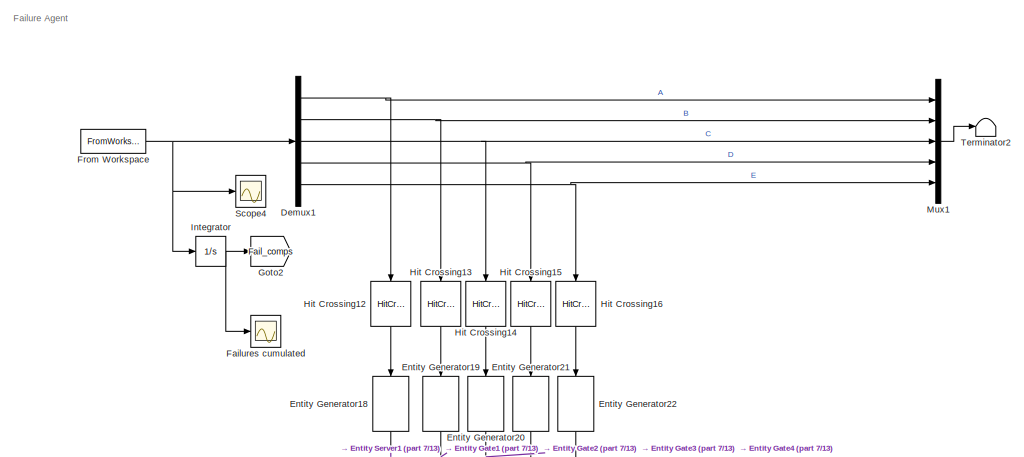
[diagram: root canvas - part 1/13, top right region]
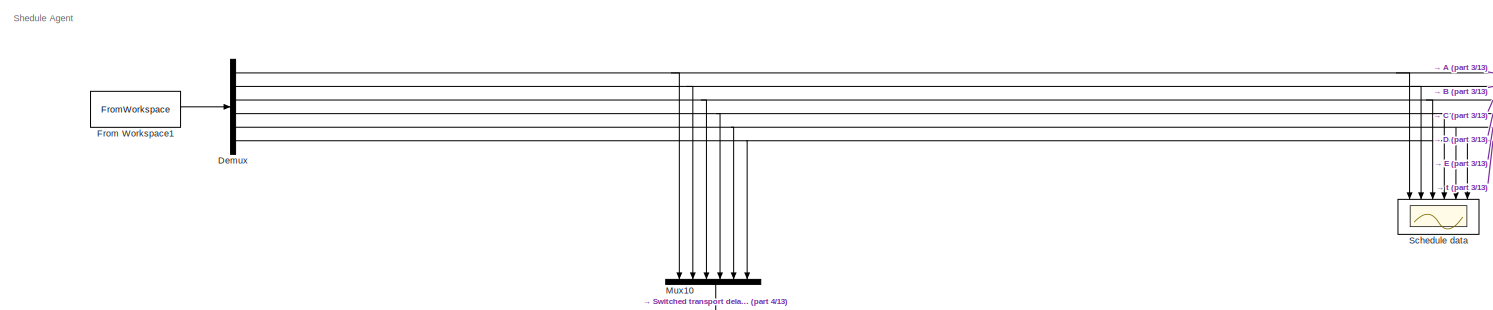
[diagram: root canvas - part 2/13, top left region]
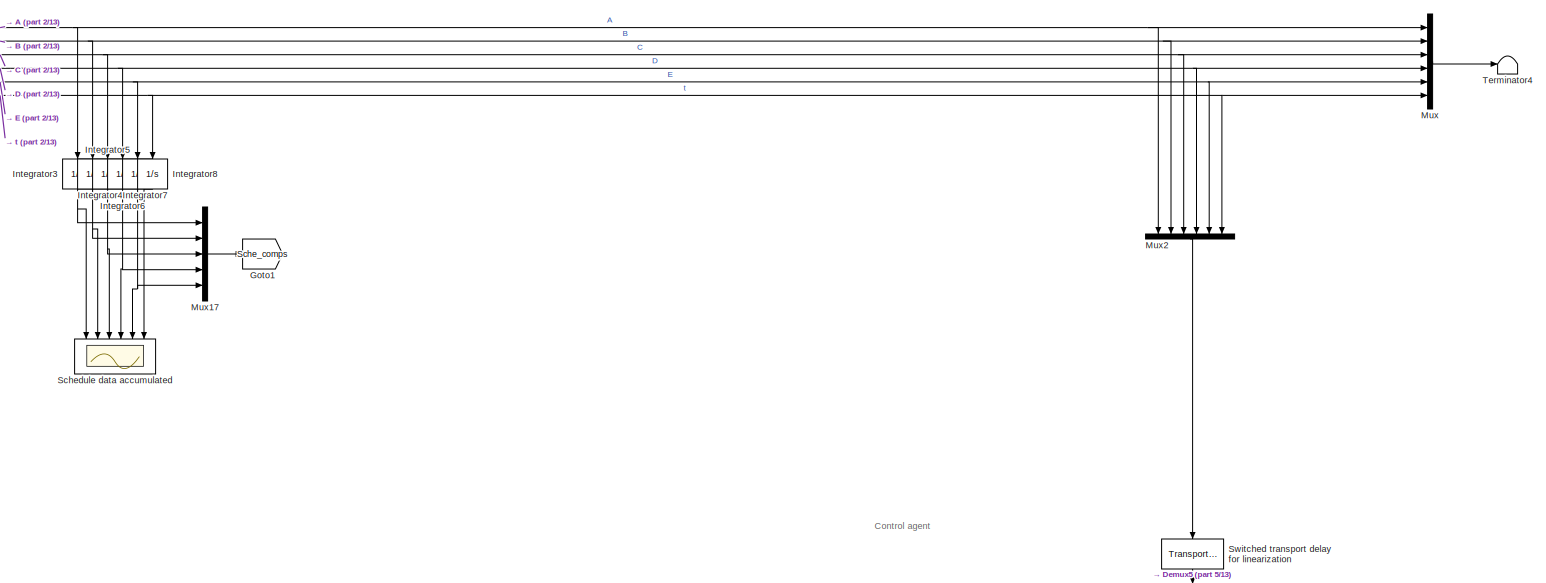
[diagram: root canvas - part 3/13, top center region]
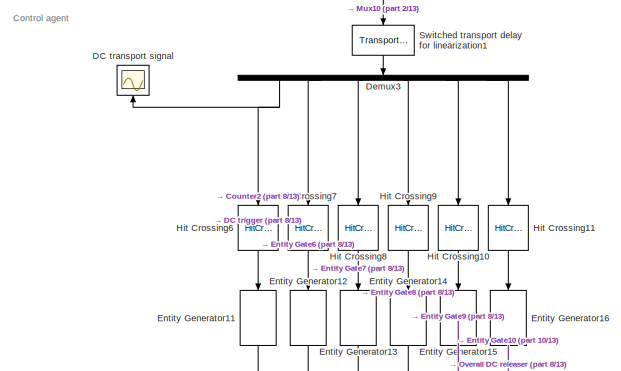
[diagram: root canvas - part 4/13, top left region]
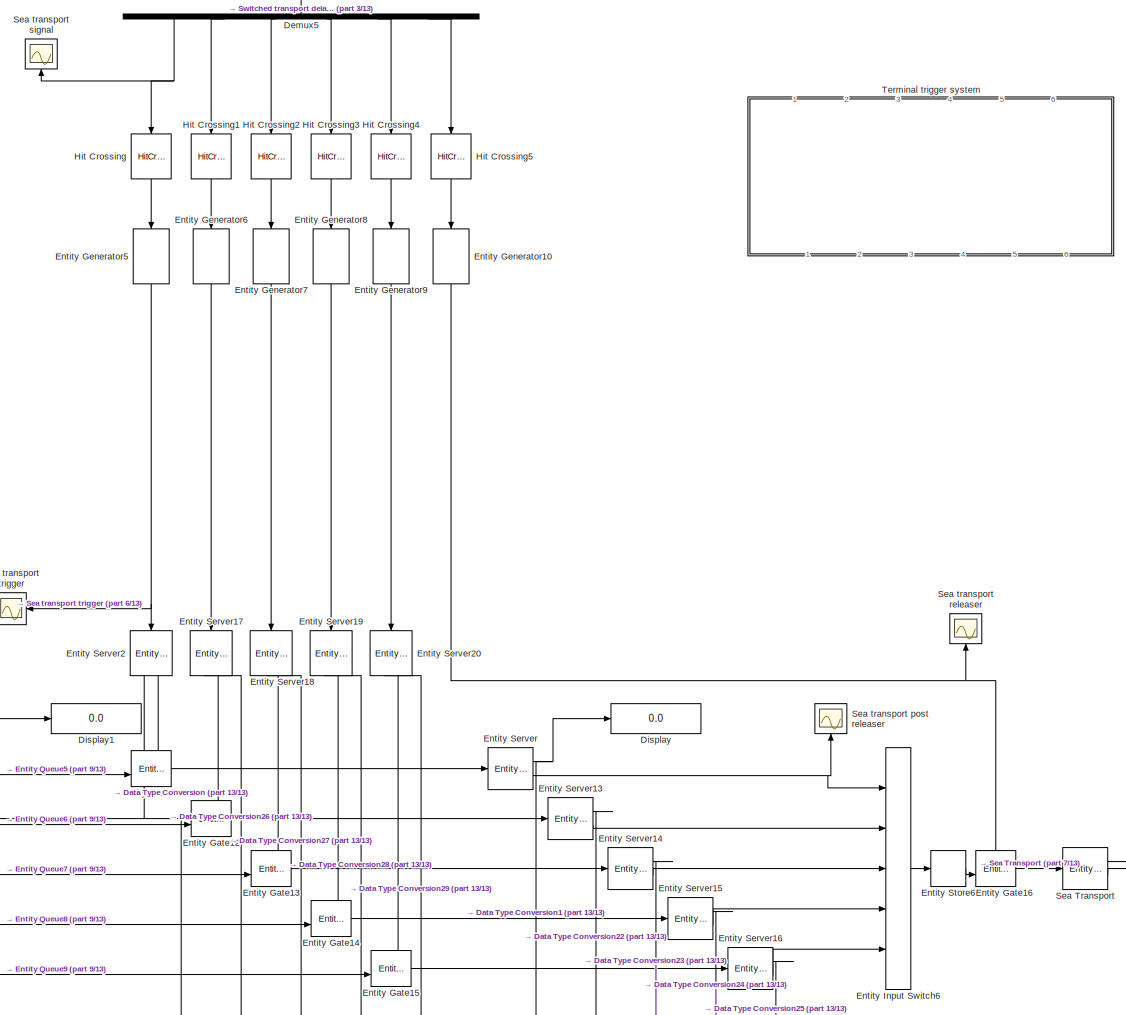
[diagram: root canvas - part 5/13, central region]
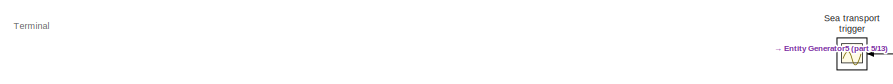
[diagram: root canvas - part 6/13, central region]
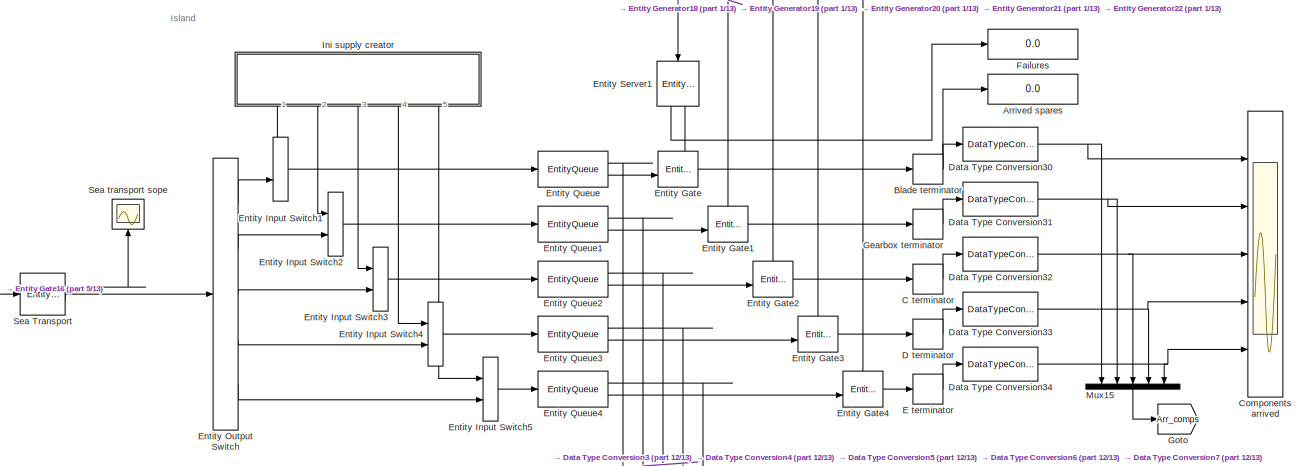
[diagram: root canvas - part 7/13, middle right region]
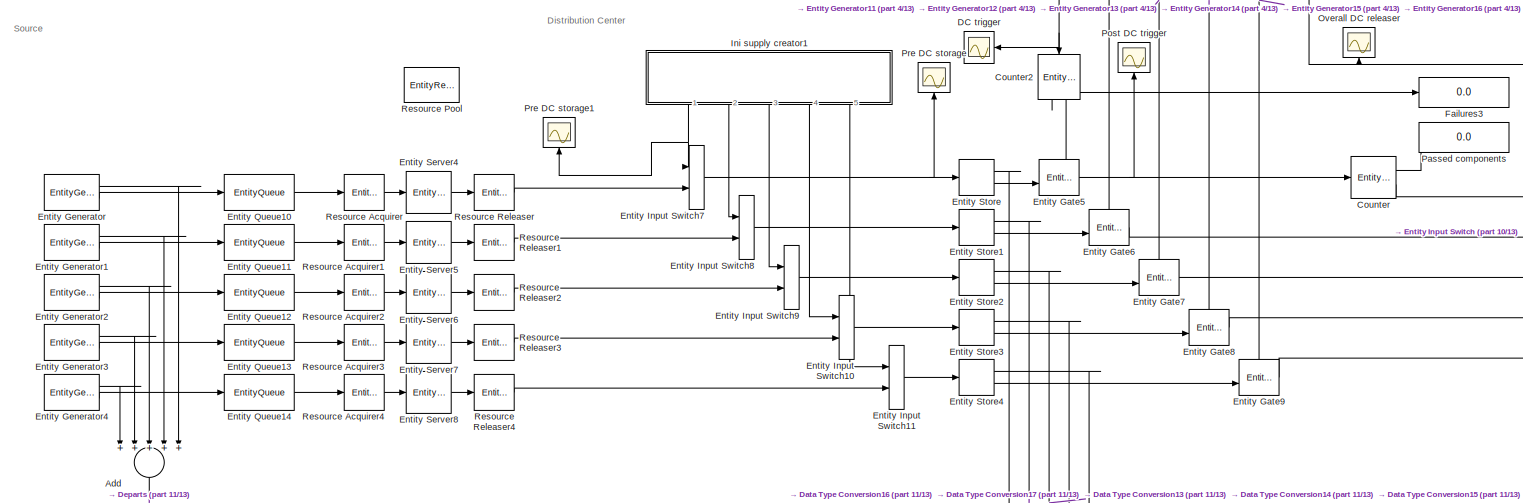
[diagram: root canvas - part 8/13, middle left region]
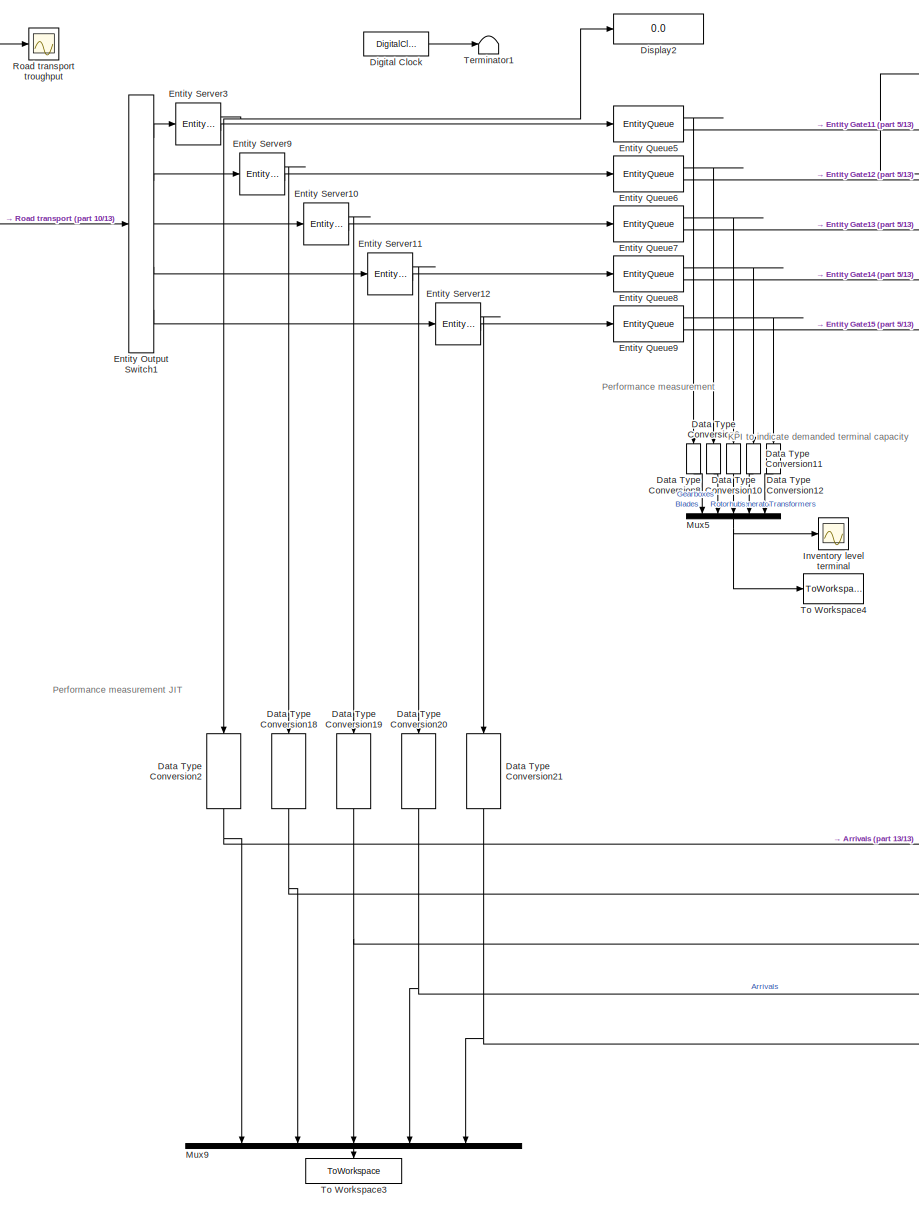
[diagram: root canvas - part 9/13, bottom center region]
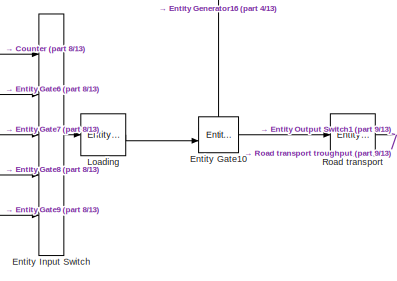
[diagram: root canvas - part 10/13, central region]
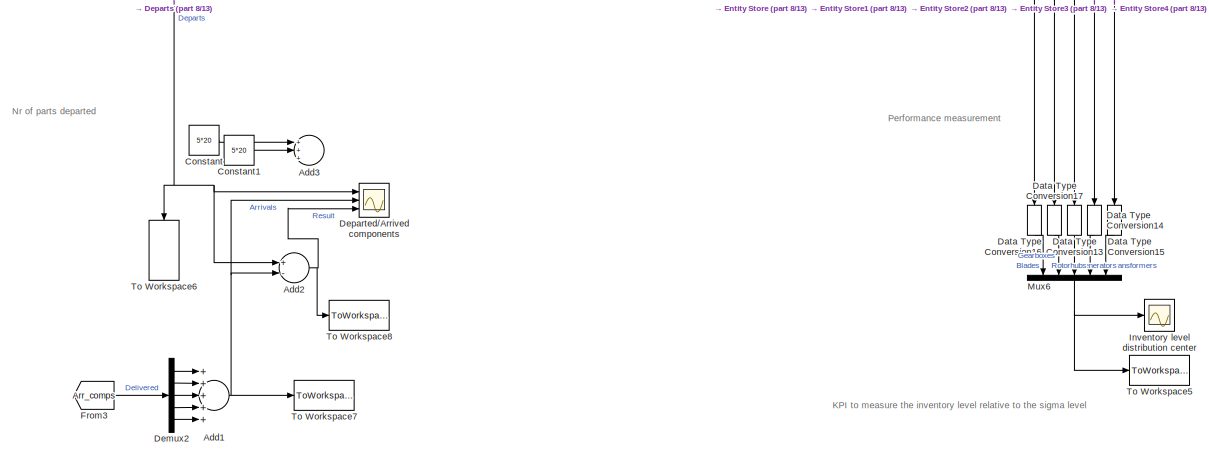
[diagram: root canvas - part 11/13, bottom left region]
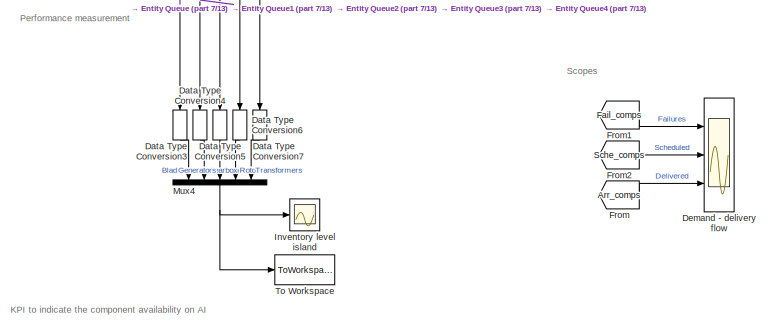
[diagram: root canvas - part 12/13, bottom right region]
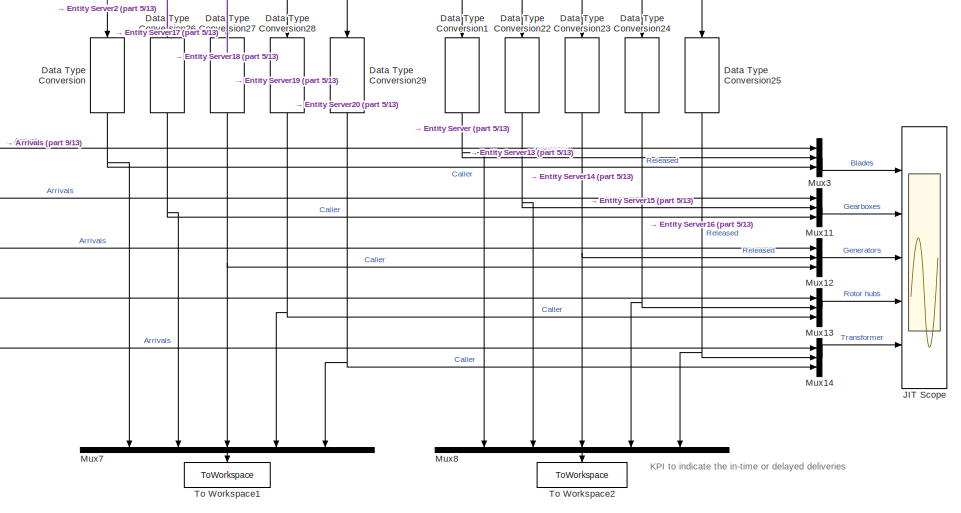
[diagram: root canvas - part 13/13, bottom center region]
MODEL slx_8236254d1240
KIND model
CONFIG AbsTol = auto
CONFIG EnableMultiTasking = off
CONFIG FixedStep = auto
CONFIG MaxStep = auto
CONFIG MinStep = auto
CONFIG RelTol = 1e-3
CONFIG SampleTimeConstraint = Unconstrained
CONFIG Solver = VariableStepAuto
CONFIG SolverName = VariableStepAuto
CONFIG StartTime = 0.0
CONFIG StopTime = n_T
BLOCK [Sum] Add
  InputSameDT = off
  Inputs = +++++
  OutDataTypeStr = Inherit: Inherit via internal rule
  Ports = [5, 1]
  SaturateOnIntegerOverflow = off
BLOCK [Sum] Add1
  InputSameDT = off
  Inputs = +++++
  OutDataTypeStr = Inherit: Inherit via internal rule
  Ports = [5, 1]
  SaturateOnIntegerOverflow = off
BLOCK [Sum] Add2
  InputSameDT = off
  Inputs = +-
  OutDataTypeStr = Inherit: Inherit via internal rule
  Ports = [2, 1]
  SaturateOnIntegerOverflow = off
BLOCK [Sum] Add3
  Commented = on
  InputSameDT = off
  Inputs = +++
  OutDataTypeStr = Inherit: Inherit via internal rule
  Ports = [3, 1]
  SaturateOnIntegerOverflow = off
BLOCK [Display] Arrived spares
  Decimation = 1
  Ports = [1]
BLOCK [EntityTerminator] Blade terminator
  InputPortMap = u0
  InputPortMessageModes = m
  NumberEntitiesArrived = on
  OutputPortMap = o0
  Ports = [1, 1]
BLOCK [EntityTerminator] C terminator
  InputPortMap = u0
  InputPortMessageModes = m
  NumberEntitiesArrived = on
  OutputPortMap = o0
  Ports = [1, 1]
BLOCK [Scope] Components arrived
  Floating = off
  NumInputPorts = 5
  Ports = [5]
  ScopeSpecificationString = Simulink.scopes.TimeScopeBlockCfg('CurrentConfiguration', extmgr.ConfigurationSet(extmgr.Configuration('Core','General UI',true),extmgr.Configuration('Core','Source UI',true),extmgr.Configuration('Sources','WiredSimulink',true,'DataLoggingVariableName','ScopeData3'),extmgr.Configuration('Visuals','Time Domain',true,'SerializedDisplays',{struct('MinYLimReal','-5.75','MaxYLimReal','51.75','YLabelRea...<+1496ch>
BLOCK [Constant] Constant
  Commented = on
  Value = 5*20
BLOCK [Constant] Constant1
  Commented = on
  Value = 5*20
BLOCK [EntityServer] Counter
  Capacity = inf
  InputPortMap = u2
  InputPortMessageModes = m
  NumberEntitiesDeparted = on
  OutputPortMap = o0,o9
  OutputPortMessageModes = n,m
  Ports = [1, 2]
  ServiceTimeValue = 0
BLOCK [EntityServer] Counter2
  Capacity = inf
  InputPortMap = u2
  InputPortMessageModes = m
  NumberEntitiesDeparted = on
  OutputPortMap = o0,o9
  OutputPortMessageModes = n,m
  Ports = [1, 2]
  ServiceTimeValue = 0
BLOCK [EntityTerminator] D terminator
  InputPortMap = u0
  InputPortMessageModes = m
  NumberEntitiesArrived = on
  OutputPortMap = o0
  Ports = [1, 1]
BLOCK [Scope] DC transport signal
  Floating = off
  NumInputPorts = 1
  Ports = [1]
  ScopeSpecificationString = Simulink.scopes.TimeScopeBlockCfg('CurrentConfiguration', extmgr.ConfigurationSet(extmgr.Configuration('Core','General UI',true),extmgr.Configuration('Core','Source UI',true),extmgr.Configuration('Sources','WiredSimulink',true,'DataLoggingVariableName','ScopeData6'),extmgr.Configuration('Visuals','Time Domain',true,'SerializedDisplays',{struct('MinYLimReal','-0.125','MaxYLimReal','1.125','YLabelRe...<+1449ch>
BLOCK [Scope] DC trigger
  Floating = off
  NumInputPorts = 1
  Ports = [1]
  ScopeSpecificationString = Simulink.scopes.TimeScopeBlockCfg('CurrentConfiguration', extmgr.ConfigurationSet(extmgr.Configuration('Core','General UI',true),extmgr.Configuration('Core','Source UI',true),extmgr.Configuration('Sources','WiredSimulink',true,'DataLoggingVariableName','ScopeData2'),extmgr.Configuration('Visuals','Time Domain',true,'SerializedDisplays',{struct('MinYLimReal','-0.12842','MaxYLimReal','1.12158','YLab...<+1473ch>
BLOCK [DataTypeConversion] Data Type Conversion
  RndMeth = Floor
  SaturateOnIntegerOverflow = off
BLOCK [DataTypeConversion] Data Type Conversion1
  RndMeth = Floor
  SaturateOnIntegerOverflow = off
BLOCK [DataTypeConversion] Data Type Conversion10
  RndMeth = Floor
  SaturateOnIntegerOverflow = off
BLOCK [DataTypeConversion] Data Type Conversion11
  RndMeth = Floor
  SaturateOnIntegerOverflow = off
BLOCK [DataTypeConversion] Data Type Conversion12
  RndMeth = Floor
  SaturateOnIntegerOverflow = off
BLOCK [DataTypeConversion] Data Type Conversion13
  RndMeth = Floor
  SaturateOnIntegerOverflow = off
BLOCK [DataTypeConversion] Data Type Conversion14
  RndMeth = Floor
  SaturateOnIntegerOverflow = off
BLOCK [DataTypeConversion] Data Type Conversion15
  RndMeth = Floor
  SaturateOnIntegerOverflow = off
BLOCK [DataTypeConversion] Data Type Conversion16
  RndMeth = Floor
  SaturateOnIntegerOverflow = off
BLOCK [DataTypeConversion] Data Type Conversion17
  RndMeth = Floor
  SaturateOnIntegerOverflow = off
BLOCK [DataTypeConversion] Data Type Conversion18
  RndMeth = Floor
  SaturateOnIntegerOverflow = off
BLOCK [DataTypeConversion] Data Type Conversion19
  RndMeth = Floor
  SaturateOnIntegerOverflow = off
BLOCK [DataTypeConversion] Data Type Conversion2
  RndMeth = Floor
  SaturateOnIntegerOverflow = off
BLOCK [DataTypeConversion] Data Type Conversion20
  RndMeth = Floor
  SaturateOnIntegerOverflow = off
BLOCK [DataTypeConversion] Data Type Conversion21
  RndMeth = Floor
  SaturateOnIntegerOverflow = off
BLOCK [DataTypeConversion] Data Type Conversion22
  RndMeth = Floor
  SaturateOnIntegerOverflow = off
BLOCK [DataTypeConversion] Data Type Conversion23
  RndMeth = Floor
  SaturateOnIntegerOverflow = off
BLOCK [DataTypeConversion] Data Type Conversion24
  RndMeth = Floor
  SaturateOnIntegerOverflow = off
BLOCK [DataTypeConversion] Data Type Conversion25
  RndMeth = Floor
  SaturateOnIntegerOverflow = off
BLOCK [DataTypeConversion] Data Type Conversion26
  RndMeth = Floor
  SaturateOnIntegerOverflow = off
BLOCK [DataTypeConversion] Data Type Conversion27
  RndMeth = Floor
  SaturateOnIntegerOverflow = off
BLOCK [DataTypeConversion] Data Type Conversion28
  RndMeth = Floor
  SaturateOnIntegerOverflow = off
BLOCK [DataTypeConversion] Data Type Conversion29
  RndMeth = Floor
  SaturateOnIntegerOverflow = off
BLOCK [DataTypeConversion] Data Type Conversion3
  RndMeth = Floor
  SaturateOnIntegerOverflow = off
BLOCK [DataTypeConversion] Data Type Conversion30
  RndMeth = Floor
  SaturateOnIntegerOverflow = off
BLOCK [DataTypeConversion] Data Type Conversion31
  RndMeth = Floor
  SaturateOnIntegerOverflow = off
BLOCK [DataTypeConversion] Data Type Conversion32
  RndMeth = Floor
  SaturateOnIntegerOverflow = off
BLOCK [DataTypeConversion] Data Type Conversion33
  RndMeth = Floor
  SaturateOnIntegerOverflow = off
BLOCK [DataTypeConversion] Data Type Conversion34
  RndMeth = Floor
  SaturateOnIntegerOverflow = off
BLOCK [DataTypeConversion] Data Type Conversion4
  RndMeth = Floor
  SaturateOnIntegerOverflow = off
BLOCK [DataTypeConversion] Data Type Conversion5
  RndMeth = Floor
  SaturateOnIntegerOverflow = off
BLOCK [DataTypeConversion] Data Type Conversion6
  RndMeth = Floor
  SaturateOnIntegerOverflow = off
BLOCK [DataTypeConversion] Data Type Conversion7
  RndMeth = Floor
  SaturateOnIntegerOverflow = off
BLOCK [DataTypeConversion] Data Type Conversion8
  RndMeth = Floor
  SaturateOnIntegerOverflow = off
BLOCK [DataTypeConversion] Data Type Conversion9
  RndMeth = Floor
  SaturateOnIntegerOverflow = off
BLOCK [Scope] Demand - delivery flow
  Floating = off
  NumInputPorts = 3
  Ports = [3]
  ScopeSpecificationString = Simulink.scopes.TimeScopeBlockCfg('CurrentConfiguration', extmgr.ConfigurationSet(extmgr.Configuration('Core','General UI',true),extmgr.Configuration('Core','Source UI',true),extmgr.Configuration('Sources','WiredSimulink',true,'DataLoggingVariableName','ScopeData1'),extmgr.Configuration('Visuals','Time Domain',true,'SerializedDisplays',{struct('MinYLimReal','-6.125','MaxYLimReal','55.125','YLabelR...<+3461ch>
BLOCK [Demux] Demux
  DisplayOption = bar
  Outputs = 6
  Ports = [1, 6]
BLOCK [Demux] Demux1
  DisplayOption = bar
  Outputs = 5
  Ports = [1, 5]
BLOCK [Demux] Demux2
  DisplayOption = bar
  Outputs = 5
  Ports = [1, 5]
BLOCK [Demux] Demux3
  DisplayOption = bar
  Outputs = 6
  Ports = [1, 6]
BLOCK [Demux] Demux5
  DisplayOption = bar
  Outputs = 6
  Ports = [1, 6]
BLOCK [Scope] Departed//Arrived components
  Floating = off
  NumInputPorts = 3
  Ports = [3]
  ScopeSpecificationString = Simulink.scopes.TimeScopeBlockCfg('CurrentConfiguration', extmgr.ConfigurationSet(extmgr.Configuration('Core','General UI',true),extmgr.Configuration('Core','Source UI',true),extmgr.Configuration('Sources','WiredSimulink',true,'DataLoggingVariableName','ScopeData2'),extmgr.Configuration('Visuals','Time Domain',true,'SerializedDisplays',{struct('MinYLimReal','-14.25','MaxYLimReal','108.25','YLabelR...<+1403ch>
BLOCK [DigitalClock] Digital Clock
BLOCK [Display] Display
  Decimation = 1
  Ports = [1]
BLOCK [Display] Display1
  Decimation = 1
  Ports = [1]
BLOCK [Display] Display2
  Decimation = 1
  Ports = [1]
BLOCK [EntityTerminator] E terminator
  InputPortMap = u0
  InputPortMessageModes = m
  NumberEntitiesArrived = on
  OutputPortMap = o0
  Ports = [1, 1]
BLOCK [EntityGate] Entity Gate
  InputPortMap = u0,u1
  InputPortMessageModes = m,m
  OperatingMode = Release gate
  OutputPortMap = o0
  OutputPortMessageModes = m
  Ports = [2, 1]
BLOCK [EntityGate] Entity Gate1
  InputPortMap = u0,u1
  InputPortMessageModes = m,m
  OperatingMode = Release gate
  OutputPortMap = o0
  OutputPortMessageModes = m
  Ports = [2, 1]
BLOCK [EntityGate] Entity Gate10
  InputPortMap = u0,u1
  InputPortMessageModes = m,m
  OperatingMode = Release gate
  OutputPortMap = o0
  OutputPortMessageModes = m
  Ports = [2, 1]
BLOCK [EntityGate] Entity Gate11
  InputPortMap = u0,u1
  InputPortMessageModes = m,m
  OperatingMode = Release gate
  OutputPortMap = o0
  OutputPortMessageModes = m
  Ports = [2, 1]
BLOCK [EntityGate] Entity Gate12
  InputPortMap = u0,u1
  InputPortMessageModes = m,m
  OperatingMode = Release gate
  OutputPortMap = o0
  OutputPortMessageModes = m
  Ports = [2, 1]
BLOCK [EntityGate] Entity Gate13
  InputPortMap = u0,u1
  InputPortMessageModes = m,m
  OperatingMode = Release gate
  OutputPortMap = o0
  OutputPortMessageModes = m
  Ports = [2, 1]
BLOCK [EntityGate] Entity Gate14
  InputPortMap = u0,u1
  InputPortMessageModes = m,m
  OperatingMode = Release gate
  OutputPortMap = o0
  OutputPortMessageModes = m
  Ports = [2, 1]
BLOCK [EntityGate] Entity Gate15
  InputPortMap = u0,u1
  InputPortMessageModes = m,m
  OperatingMode = Release gate
  OutputPortMap = o0
  OutputPortMessageModes = m
  Ports = [2, 1]
BLOCK [EntityGate] Entity Gate16
  InputPortMap = u0,u1
  InputPortMessageModes = m,m
  OperatingMode = Release gate
  OutputPortMap = o0
  OutputPortMessageModes = m
  Ports = [2, 1]
BLOCK [EntityGate] Entity Gate2
  InputPortMap = u0,u1
  InputPortMessageModes = m,m
  OperatingMode = Release gate
  OutputPortMap = o0
  OutputPortMessageModes = m
  Ports = [2, 1]
BLOCK [EntityGate] Entity Gate3
  InputPortMap = u0,u1
  InputPortMessageModes = m,m
  OperatingMode = Release gate
  OutputPortMap = o0
  OutputPortMessageModes = m
  Ports = [2, 1]
BLOCK [EntityGate] Entity Gate4
  InputPortMap = u0,u1
  InputPortMessageModes = m,m
  OperatingMode = Release gate
  OutputPortMap = o0
  OutputPortMessageModes = m
  Ports = [2, 1]
BLOCK [EntityGate] Entity Gate5
  InputPortMap = u0,u1
  InputPortMessageModes = m,m
  OperatingMode = Release gate
  OutputPortMap = o0
  OutputPortMessageModes = m
  Ports = [2, 1]
BLOCK [EntityGate] Entity Gate6
  InputPortMap = u0,u1
  InputPortMessageModes = m,m
  OperatingMode = Release gate
  OutputPortMap = o0
  OutputPortMessageModes = m
  Ports = [2, 1]
BLOCK [EntityGate] Entity Gate7
  InputPortMap = u0,u1
  InputPortMessageModes = m,m
  OperatingMode = Release gate
  OutputPortMap = o0
  OutputPortMessageModes = m
  Ports = [2, 1]
BLOCK [EntityGate] Entity Gate8
  InputPortMap = u0,u1
  InputPortMessageModes = m,m
  OperatingMode = Release gate
  OutputPortMap = o0
  OutputPortMessageModes = m
  Ports = [2, 1]
BLOCK [EntityGate] Entity Gate9
  InputPortMap = u0,u1
  InputPortMessageModes = m,m
  OperatingMode = Release gate
  OutputPortMap = o0
  OutputPortMessageModes = m
  Ports = [2, 1]
BLOCK [EntityGenerator] Entity Generator
  AttributeName = PartNumber
  EntityType = Structured
  EntityTypeName = Part
  NumberEntitiesDeparted = on
  OutputPortMap = o0,o3
  OutputPortMessageModes = n,m
  Period = MTBF_h(1,yoi)
  Ports = [0, 2]
BLOCK [EntityGenerator] Entity Generator1
  AttributeInitialValue = 2
  AttributeName = PartNumber
  EntityType = Structured
  EntityTypeName = Part
  NumberEntitiesDeparted = on
  OutputPortMap = o0,o3
  OutputPortMessageModes = n,m
  Period = MTBF_h(2,yoi)
  Ports = [0, 2]
BLOCK [EntityGenerator] Entity Generator10
  AttributeInitialValue = 0
  AttributeName = entity
  EntityTypeName = Entity
  GenerationMethod = Event-based
  InputPortMap = u0
  InputPortMessageModes = m
  OutputPortMap = o3
  OutputPortMessageModes = m
  Ports = [1, 1]
BLOCK [EntityGenerator] Entity Generator11
  AttributeInitialValue = 0
  AttributeName = entity
  EntityTypeName = Entity
  GenerationMethod = Event-based
  InputPortMap = u0
  InputPortMessageModes = m
  OutputPortMap = o3
  OutputPortMessageModes = m
  Ports = [1, 1]
BLOCK [EntityGenerator] Entity Generator12
  AttributeInitialValue = 0
  AttributeName = entity
  EntityTypeName = Entity
  GenerationMethod = Event-based
  InputPortMap = u0
  InputPortMessageModes = m
  OutputPortMap = o3
  OutputPortMessageModes = m
  Ports = [1, 1]
BLOCK [EntityGenerator] Entity Generator13
  AttributeInitialValue = 0
  AttributeName = entity
  EntityTypeName = Entity
  GenerationMethod = Event-based
  InputPortMap = u0
  InputPortMessageModes = m
  OutputPortMap = o3
  OutputPortMessageModes = m
  Ports = [1, 1]
BLOCK [EntityGenerator] Entity Generator14
  AttributeInitialValue = 0
  AttributeName = entity
  EntityTypeName = Entity
  GenerationMethod = Event-based
  InputPortMap = u0
  InputPortMessageModes = m
  OutputPortMap = o3
  OutputPortMessageModes = m
  Ports = [1, 1]
BLOCK [EntityGenerator] Entity Generator15
  AttributeInitialValue = 0
  AttributeName = entity
  EntityTypeName = Entity
  GenerationMethod = Event-based
  InputPortMap = u0
  InputPortMessageModes = m
  OutputPortMap = o3
  OutputPortMessageModes = m
  Ports = [1, 1]
BLOCK [EntityGenerator] Entity Generator16
  AttributeInitialValue = 0
  AttributeName = entity
  EntityTypeName = Entity
  GenerationMethod = Event-based
  InputPortMap = u0
  InputPortMessageModes = m
  OutputPortMap = o3
  OutputPortMessageModes = m
  Ports = [1, 1]
BLOCK [EntityGenerator] Entity Generator18
  AttributeInitialValue = 0
  AttributeName = entity
  EntityTypeName = Entity
  GenerationMethod = Event-based
  InputPortMap = u0
  InputPortMessageModes = m
  OutputPortMap = o3
  OutputPortMessageModes = m
  Ports = [1, 1]
BLOCK [EntityGenerator] Entity Generator19
  AttributeInitialValue = 0
  AttributeName = entity
  EntityTypeName = Entity
  GenerationMethod = Event-based
  InputPortMap = u0
  InputPortMessageModes = m
  OutputPortMap = o3
  OutputPortMessageModes = m
  Ports = [1, 1]
BLOCK [EntityGenerator] Entity Generator2
  AttributeInitialValue = 3
  AttributeName = PartNumber
  EntityType = Structured
  EntityTypeName = Part
  NumberEntitiesDeparted = on
  OutputPortMap = o0,o3
  OutputPortMessageModes = n,m
  Period = MTBF_h(3,yoi)
  Ports = [0, 2]
BLOCK [EntityGenerator] Entity Generator20
  AttributeInitialValue = 0
  AttributeName = entity
  EntityTypeName = Entity
  GenerationMethod = Event-based
  InputPortMap = u0
  InputPortMessageModes = m
  OutputPortMap = o3
  OutputPortMessageModes = m
  Ports = [1, 1]
BLOCK [EntityGenerator] Entity Generator21
  AttributeInitialValue = 0
  AttributeName = entity
  EntityTypeName = Entity
  GenerationMethod = Event-based
  InputPortMap = u0
  InputPortMessageModes = m
  OutputPortMap = o3
  OutputPortMessageModes = m
  Ports = [1, 1]
BLOCK [EntityGenerator] Entity Generator22
  AttributeInitialValue = 0
  AttributeName = entity
  EntityTypeName = Entity
  GenerationMethod = Event-based
  InputPortMap = u0
  InputPortMessageModes = m
  OutputPortMap = o3
  OutputPortMessageModes = m
  Ports = [1, 1]
BLOCK [EntityGenerator] Entity Generator3
  AttributeInitialValue = 4
  AttributeName = PartNumber
  EntityType = Structured
  EntityTypeName = Part
  NumberEntitiesDeparted = on
  OutputPortMap = o0,o3
  OutputPortMessageModes = n,m
  Period = MTBF_h(4,yoi)
  Ports = [0, 2]
BLOCK [EntityGenerator] Entity Generator4
  AttributeInitialValue = 5
  AttributeName = PartNumber
  EntityType = Structured
  EntityTypeName = Part
  NumberEntitiesDeparted = on
  OutputPortMap = o0,o3
  OutputPortMessageModes = n,m
  Period = MTBF_h(5,yoi)
  Ports = [0, 2]
BLOCK [EntityGenerator] Entity Generator5
  AttributeInitialValue = 0
  AttributeName = entity
  EntityTypeName = Entity
  GenerationMethod = Event-based
  InputPortMap = u0
  InputPortMessageModes = m
  OutputPortMap = o3
  OutputPortMessageModes = m
  Ports = [1, 1]
BLOCK [EntityGenerator] Entity Generator6
  AttributeInitialValue = 0
  AttributeName = entity
  EntityTypeName = Entity
  GenerationMethod = Event-based
  InputPortMap = u0
  InputPortMessageModes = m
  OutputPortMap = o3
  OutputPortMessageModes = m
  Ports = [1, 1]
BLOCK [EntityGenerator] Entity Generator7
  AttributeInitialValue = 0
  AttributeName = entity
  EntityTypeName = Entity
  GenerationMethod = Event-based
  InputPortMap = u0
  InputPortMessageModes = m
  OutputPortMap = o3
  OutputPortMessageModes = m
  Ports = [1, 1]
BLOCK [EntityGenerator] Entity Generator8
  AttributeInitialValue = 0
  AttributeName = entity
  EntityTypeName = Entity
  GenerationMethod = Event-based
  InputPortMap = u0
  InputPortMessageModes = m
  OutputPortMap = o3
  OutputPortMessageModes = m
  Ports = [1, 1]
BLOCK [EntityGenerator] Entity Generator9
  AttributeInitialValue = 0
  AttributeName = entity
  EntityTypeName = Entity
  GenerationMethod = Event-based
  InputPortMap = u0
  InputPortMessageModes = m
  OutputPortMap = o3
  OutputPortMessageModes = m
  Ports = [1, 1]
BLOCK [EntityInputSwitch] Entity Input Switch
  InputPortMap = u1,u2,u3,u4,u5
  InputPortMessageModes = m,m,m,m,m
  NumberInputPorts = 5
  OutputPortMap = o0
  OutputPortMessageModes = m
  Ports = [5, 1]
BLOCK [EntityInputSwitch] Entity Input Switch1
  InputPortMap = u1,u2
  InputPortMessageModes = m,m
  OutputPortMap = o0
  OutputPortMessageModes = m
  Ports = [2, 1]
BLOCK [EntityInputSwitch] Entity Input Switch10
  InputPortMap = u1,u2
  InputPortMessageModes = m,m
  OutputPortMap = o0
  OutputPortMessageModes = m
  Ports = [2, 1]
BLOCK [EntityInputSwitch] Entity Input Switch11
  InputPortMap = u1,u2
  InputPortMessageModes = m,m
  OutputPortMap = o0
  OutputPortMessageModes = m
  Ports = [2, 1]
BLOCK [EntityInputSwitch] Entity Input Switch2
  InputPortMap = u1,u2
  InputPortMessageModes = m,m
  OutputPortMap = o0
  OutputPortMessageModes = m
  Ports = [2, 1]
BLOCK [EntityInputSwitch] Entity Input Switch3
  InputPortMap = u1,u2
  InputPortMessageModes = m,m
  OutputPortMap = o0
  OutputPortMessageModes = m
  Ports = [2, 1]
BLOCK [EntityInputSwitch] Entity Input Switch4
  InputPortMap = u1,u2
  InputPortMessageModes = m,m
  OutputPortMap = o0
  OutputPortMessageModes = m
  Ports = [2, 1]
BLOCK [EntityInputSwitch] Entity Input Switch5
  InputPortMap = u1,u2
  InputPortMessageModes = m,m
  OutputPortMap = o0
  OutputPortMessageModes = m
  Ports = [2, 1]
BLOCK [EntityInputSwitch] Entity Input Switch6
  InputPortMap = u1,u2,u3,u4,u5
  InputPortMessageModes = m,m,m,m,m
  NumberInputPorts = 5
  OutputPortMap = o0
  OutputPortMessageModes = m
  Ports = [5, 1]
BLOCK [EntityInputSwitch] Entity Input Switch7
  InputPortMap = u1,u2
  InputPortMessageModes = m,m
  OutputPortMap = o0
  OutputPortMessageModes = m
  Ports = [2, 1]
BLOCK [EntityInputSwitch] Entity Input Switch8
  InputPortMap = u1,u2
  InputPortMessageModes = m,m
  OutputPortMap = o0
  OutputPortMessageModes = m
  Ports = [2, 1]
BLOCK [EntityInputSwitch] Entity Input Switch9
  InputPortMap = u1,u2
  InputPortMessageModes = m,m
  OutputPortMap = o0
  OutputPortMessageModes = m
  Ports = [2, 1]
BLOCK [EntityOutputSwitch] Entity Output Switch
  InputPortMap = u1
  InputPortMessageModes = m
  NumberOutputPorts = 5
  OutputPortMap = o0,o1,o2,o3,o4
  OutputPortMessageModes = m,m,m,m,m
  Ports = [1, 5]
  SwitchAttributeName = PartNumber
  SwitchingCriterion = From attribute
BLOCK [EntityOutputSwitch] Entity Output Switch1
  InputPortMap = u1
  InputPortMessageModes = m
  NumberOutputPorts = 5
  OutputPortMap = o0,o1,o2,o3,o4
  OutputPortMessageModes = m,m,m,m,m
  Ports = [1, 5]
  SwitchAttributeName = PartNumber
  SwitchingCriterion = From attribute
BLOCK [EntityQueue] Entity Queue
  Capacity = 20
  InputPortMap = u0
  InputPortMessageModes = m
  NumberEntitiesInBlock = on
  OutputPortMap = o1,o5
  OutputPortMessageModes = n,m
  Ports = [1, 2]
BLOCK [EntityQueue] Entity Queue1
  Capacity = 20
  InputPortMap = u0
  InputPortMessageModes = m
  NumberEntitiesInBlock = on
  OutputPortMap = o1,o5
  OutputPortMessageModes = n,m
  Ports = [1, 2]
BLOCK [EntityQueue] Entity Queue10
  Capacity = 1
  Commented = through
  InputPortMap = u0
  InputPortMessageModes = m
  OutputPortMap = o5
  OutputPortMessageModes = m
  Ports = [1, 1]
BLOCK [EntityQueue] Entity Queue11
  Capacity = 1
  Commented = through
  InputPortMap = u0
  InputPortMessageModes = m
  OutputPortMap = o5
  OutputPortMessageModes = m
  Ports = [1, 1]
BLOCK [EntityQueue] Entity Queue12
  Capacity = 1
  Commented = through
  InputPortMap = u0
  InputPortMessageModes = m
  OutputPortMap = o5
  OutputPortMessageModes = m
  Ports = [1, 1]
BLOCK [EntityQueue] Entity Queue13
  Capacity = 1
  Commented = through
  InputPortMap = u0
  InputPortMessageModes = m
  OutputPortMap = o5
  OutputPortMessageModes = m
  Ports = [1, 1]
BLOCK [EntityQueue] Entity Queue14
  Capacity = 1
  Commented = through
  InputPortMap = u0
  InputPortMessageModes = m
  OutputPortMap = o5
  OutputPortMessageModes = m
  Ports = [1, 1]
BLOCK [EntityQueue] Entity Queue2
  Capacity = 20
  InputPortMap = u0
  InputPortMessageModes = m
  NumberEntitiesInBlock = on
  OutputPortMap = o1,o5
  OutputPortMessageModes = n,m
  Ports = [1, 2]
BLOCK [EntityQueue] Entity Queue3
  Capacity = 20
  InputPortMap = u0
  InputPortMessageModes = m
  NumberEntitiesInBlock = on
  OutputPortMap = o1,o5
  OutputPortMessageModes = n,m
  Ports = [1, 2]
BLOCK [EntityQueue] Entity Queue4
  Capacity = 20
  InputPortMap = u0
  InputPortMessageModes = m
  NumberEntitiesInBlock = on
  OutputPortMap = o1,o5
  OutputPortMessageModes = n,m
  Ports = [1, 2]
BLOCK [EntityQueue] Entity Queue5
  Capacity = 20
  InputPortMap = u0
  InputPortMessageModes = m
  NumberEntitiesInBlock = on
  OutputPortMap = o1,o5
  OutputPortMessageModes = n,m
  Ports = [1, 2]
BLOCK [EntityQueue] Entity Queue6
  Capacity = 20
  InputPortMap = u0
  InputPortMessageModes = m
  NumberEntitiesInBlock = on
  OutputPortMap = o1,o5
  OutputPortMessageModes = n,m
  Ports = [1, 2]
BLOCK [EntityQueue] Entity Queue7
  Capacity = 20
  InputPortMap = u0
  InputPortMessageModes = m
  NumberEntitiesInBlock = on
  OutputPortMap = o1,o5
  OutputPortMessageModes = n,m
  Ports = [1, 2]
BLOCK [EntityQueue] Entity Queue8
  Capacity = 20
  InputPortMap = u0
  InputPortMessageModes = m
  NumberEntitiesInBlock = on
  OutputPortMap = o1,o5
  OutputPortMessageModes = n,m
  Ports = [1, 2]
BLOCK [EntityQueue] Entity Queue9
  Capacity = 20
  InputPortMap = u0
  InputPortMessageModes = m
  NumberEntitiesInBlock = on
  OutputPortMap = o1,o5
  OutputPortMessageModes = n,m
  Ports = [1, 2]
BLOCK [EntityServer] Entity Server
  Capacity = inf
  InputPortMap = u2
  InputPortMessageModes = m
  NumberEntitiesDeparted = on
  OutputPortMap = o0,o9
  OutputPortMessageModes = n,m
  Ports = [1, 2]
  ServiceTimeValue = 0
BLOCK [EntityServer] Entity Server1
  Capacity = inf
  InputPortMap = u2
  InputPortMessageModes = m
  NumberEntitiesDeparted = on
  OutputPortMap = o0,o9
  OutputPortMessageModes = n,m
  Ports = [1, 2]
  ServiceTimeValue = 0
BLOCK [EntityServer] Entity Server10
  Capacity = inf
  InputPortMap = u2
  InputPortMessageModes = m
  NumberEntitiesDeparted = on
  OutputPortMap = o0,o9
  OutputPortMessageModes = n,m
  Ports = [1, 2]
  ServiceTimeValue = 0
BLOCK [EntityServer] Entity Server11
  Capacity = inf
  InputPortMap = u2
  InputPortMessageModes = m
  NumberEntitiesDeparted = on
  OutputPortMap = o0,o9
  OutputPortMessageModes = n,m
  Ports = [1, 2]
  ServiceTimeValue = 0
BLOCK [EntityServer] Entity Server12
  Capacity = inf
  InputPortMap = u2
  InputPortMessageModes = m
  NumberEntitiesDeparted = on
  OutputPortMap = o0,o9
  OutputPortMessageModes = n,m
  Ports = [1, 2]
  ServiceTimeValue = 0
BLOCK [EntityServer] Entity Server13
  Capacity = inf
  InputPortMap = u2
  InputPortMessageModes = m
  NumberEntitiesDeparted = on
  OutputPortMap = o0,o9
  OutputPortMessageModes = n,m
  Ports = [1, 2]
  ServiceTimeValue = 0
BLOCK [EntityServer] Entity Server14
  Capacity = inf
  InputPortMap = u2
  InputPortMessageModes = m
  NumberEntitiesDeparted = on
  OutputPortMap = o0,o9
  OutputPortMessageModes = n,m
  Ports = [1, 2]
  ServiceTimeValue = 0
BLOCK [EntityServer] Entity Server15
  Capacity = inf
  InputPortMap = u2
  InputPortMessageModes = m
  NumberEntitiesDeparted = on
  OutputPortMap = o0,o9
  OutputPortMessageModes = n,m
  Ports = [1, 2]
  ServiceTimeValue = 0
BLOCK [EntityServer] Entity Server16
  Capacity = inf
  InputPortMap = u2
  InputPortMessageModes = m
  NumberEntitiesDeparted = on
  OutputPortMap = o0,o9
  OutputPortMessageModes = n,m
  Ports = [1, 2]
  ServiceTimeValue = 0
BLOCK [EntityServer] Entity Server17
  Capacity = inf
  InputPortMap = u2
  InputPortMessageModes = m
  NumberEntitiesDeparted = on
  OutputPortMap = o0,o9
  OutputPortMessageModes = n,m
  Ports = [1, 2]
  ServiceTimeValue = 0
BLOCK [EntityServer] Entity Server18
  Capacity = inf
  InputPortMap = u2
  InputPortMessageModes = m
  NumberEntitiesDeparted = on
  OutputPortMap = o0,o9
  OutputPortMessageModes = n,m
  Ports = [1, 2]
  ServiceTimeValue = 0
BLOCK [EntityServer] Entity Server19
  Capacity = inf
  InputPortMap = u2
  InputPortMessageModes = m
  NumberEntitiesDeparted = on
  OutputPortMap = o0,o9
  OutputPortMessageModes = n,m
  Ports = [1, 2]
  ServiceTimeValue = 0
BLOCK [EntityServer] Entity Server2
  Capacity = inf
  InputPortMap = u2
  InputPortMessageModes = m
  NumberEntitiesDeparted = on
  OutputPortMap = o0,o9
  OutputPortMessageModes = n,m
  Ports = [1, 2]
  ServiceTimeValue = 0
BLOCK [EntityServer] Entity Server20
  Capacity = inf
  InputPortMap = u2
  InputPortMessageModes = m
  NumberEntitiesDeparted = on
  OutputPortMap = o0,o9
  OutputPortMessageModes = n,m
  Ports = [1, 2]
  ServiceTimeValue = 0
BLOCK [EntityServer] Entity Server3
  Capacity = inf
  InputPortMap = u2
  InputPortMessageModes = m
  NumberEntitiesDeparted = on
  OutputPortMap = o0,o9
  OutputPortMessageModes = n,m
  Ports = [1, 2]
  ServiceTimeValue = 0
BLOCK [EntityServer] Entity Server4
  Capacity = inf
  InputPortMap = u2
  InputPortMessageModes = m
  OutputPortMap = o9
  OutputPortMessageModes = m
  Ports = [1, 1]
  ServiceTimeAction = dt = normrnd(D(1,2),ts_sigma_distance(1,2));
  ServiceTimeSource = MATLAB action
  ServiceTimeValue = 20
BLOCK [EntityServer] Entity Server5
  Capacity = inf
  InputPortMap = u2
  InputPortMessageModes = m
  OutputPortMap = o9
  OutputPortMessageModes = m
  Ports = [1, 1]
  ServiceTimeAction = dt = normrnd(D(1,2),ts_sigma_distance(1,2));
  ServiceTimeSource = MATLAB action
  ServiceTimeValue = 20
BLOCK [EntityServer] Entity Server6
  Capacity = inf
  InputPortMap = u2
  InputPortMessageModes = m
  OutputPortMap = o9
  OutputPortMessageModes = m
  Ports = [1, 1]
  ServiceTimeAction = dt = normrnd(D(1,2),ts_sigma_distance(1,2));
  ServiceTimeSource = MATLAB action
  ServiceTimeValue = 20
BLOCK [EntityServer] Entity Server7
  Capacity = inf
  InputPortMap = u2
  InputPortMessageModes = m
  OutputPortMap = o9
  OutputPortMessageModes = m
  Ports = [1, 1]
  ServiceTimeAction = dt = normrnd(D(1,2),ts_sigma_distance(1,2));
  ServiceTimeSource = MATLAB action
  ServiceTimeValue = 20
BLOCK [EntityServer] Entity Server8
  Capacity = inf
  InputPortMap = u2
  InputPortMessageModes = m
  OutputPortMap = o9
  OutputPortMessageModes = m
  Ports = [1, 1]
  ServiceTimeAction = dt = normrnd(D(1,2),ts_sigma_distance(1,2));
  ServiceTimeSource = MATLAB action
  ServiceTimeValue = 20
BLOCK [EntityServer] Entity Server9
  Capacity = inf
  InputPortMap = u2
  InputPortMessageModes = m
  NumberEntitiesDeparted = on
  OutputPortMap = o0,o9
  OutputPortMessageModes = n,m
  Ports = [1, 2]
  ServiceTimeValue = 0
BLOCK [EntityStore] Entity Store
  Capacity = 20
  InputPortMap = u0
  InputPortMessageModes = m
  NumberEntitiesInBlock = on
  OutputPortMap = o1,o4
  OutputPortMessageModes = n,m
  Ports = [1, 2]
BLOCK [EntityStore] Entity Store1
  Capacity = 20
  InputPortMap = u0
  InputPortMessageModes = m
  NumberEntitiesInBlock = on
  OutputPortMap = o1,o4
  OutputPortMessageModes = n,m
  Ports = [1, 2]
BLOCK [EntityStore] Entity Store2
  Capacity = 20
  InputPortMap = u0
  InputPortMessageModes = m
  NumberEntitiesInBlock = on
  OutputPortMap = o1,o4
  OutputPortMessageModes = n,m
  Ports = [1, 2]
BLOCK [EntityStore] Entity Store3
  Capacity = 20
  InputPortMap = u0
  InputPortMessageModes = m
  NumberEntitiesInBlock = on
  OutputPortMap = o1,o4
  OutputPortMessageModes = n,m
  Ports = [1, 2]
BLOCK [EntityStore] Entity Store4
  Capacity = 20
  InputPortMap = u0
  InputPortMessageModes = m
  NumberEntitiesInBlock = on
  OutputPortMap = o1,o4
  OutputPortMessageModes = n,m
  Ports = [1, 2]
BLOCK [EntityStore] Entity Store6
  Capacity = inf
  InputPortMap = u0
  InputPortMessageModes = m
  OutputPortMap = o4
  OutputPortMessageModes = m
  Ports = [1, 1]
BLOCK [Display] Failures
  Decimation = 1
  Ports = [1]
BLOCK [Scope] Failures cumulated
  Floating = off
  NumInputPorts = 1
  Ports = [1]
  ScopeSpecificationString = Simulink.scopes.TimeScopeBlockCfg('CurrentConfiguration', extmgr.ConfigurationSet(extmgr.Configuration('Core','General UI',true),extmgr.Configuration('Core','Source UI',true),extmgr.Configuration('Sources','WiredSimulink',true,'DataLoggingVariableName','ScopeData4'),extmgr.Configuration('Visuals','Time Domain',true,'SerializedDisplays',{struct('MinYLimReal','-7.00000','MaxYLimReal','63.00000','YLa...<+1659ch>
BLOCK [Display] Failures3
  Decimation = 1
  Ports = [1]
BLOCK [From] From
  GotoTag = Arr_comps
BLOCK [FromWorkspace] From Workspace
  SampleTime = 0
  VariableName = Failure_events
  ZeroCross = on
BLOCK [FromWorkspace] From Workspace1
  SampleTime = 0
  VariableName = Schedule_data
  ZeroCross = on
BLOCK [From] From1
  GotoTag = Fail_comps
BLOCK [From] From2
  GotoTag = Sche_comps
BLOCK [From] From3
  GotoTag = Arr_comps
BLOCK [EntityTerminator] Gearbox terminator
  InputPortMap = u0
  InputPortMessageModes = m
  NumberEntitiesArrived = on
  OutputPortMap = o0
  Ports = [1, 1]
BLOCK [Goto] Goto
  GotoTag = Arr_comps
BLOCK [Goto] Goto1
  GotoTag = Sche_comps
BLOCK [Goto] Goto2
  GotoTag = Fail_comps
BLOCK [HitCross] Hit Crossing
  HitCrossingDirection = rising
  HitCrossingOutputType = Message
  OutputPortMessageModes = m
  Ports = [1, 1]
BLOCK [HitCross] Hit Crossing1
  HitCrossingDirection = rising
  HitCrossingOutputType = Message
  OutputPortMessageModes = m
  Ports = [1, 1]
BLOCK [HitCross] Hit Crossing10
  HitCrossingDirection = rising
  HitCrossingOutputType = Message
  OutputPortMessageModes = m
  Ports = [1, 1]
BLOCK [HitCross] Hit Crossing11
  HitCrossingDirection = rising
  HitCrossingOutputType = Message
  OutputPortMessageModes = m
  Ports = [1, 1]
BLOCK [HitCross] Hit Crossing12
  HitCrossingDirection = rising
  HitCrossingOutputType = Message
  OutputPortMessageModes = m
  Ports = [1, 1]
BLOCK [HitCross] Hit Crossing13
  HitCrossingDirection = rising
  HitCrossingOutputType = Message
  OutputPortMessageModes = m
  Ports = [1, 1]
BLOCK [HitCross] Hit Crossing14
  HitCrossingDirection = rising
  HitCrossingOutputType = Message
  OutputPortMessageModes = m
  Ports = [1, 1]
BLOCK [HitCross] Hit Crossing15
  HitCrossingDirection = rising
  HitCrossingOutputType = Message
  OutputPortMessageModes = m
  Ports = [1, 1]
BLOCK [HitCross] Hit Crossing16
  HitCrossingDirection = rising
  HitCrossingOutputType = Message
  OutputPortMessageModes = m
  Ports = [1, 1]
BLOCK [HitCross] Hit Crossing2
  HitCrossingDirection = rising
  HitCrossingOutputType = Message
  OutputPortMessageModes = m
  Ports = [1, 1]
BLOCK [HitCross] Hit Crossing3
  HitCrossingDirection = rising
  HitCrossingOutputType = Message
  OutputPortMessageModes = m
  Ports = [1, 1]
BLOCK [HitCross] Hit Crossing4
  HitCrossingDirection = rising
  HitCrossingOutputType = Message
  OutputPortMessageModes = m
  Ports = [1, 1]
BLOCK [HitCross] Hit Crossing5
  HitCrossingDirection = rising
  HitCrossingOutputType = Message
  OutputPortMessageModes = m
  Ports = [1, 1]
BLOCK [HitCross] Hit Crossing6
  HitCrossingDirection = rising
  HitCrossingOutputType = Message
  OutputPortMessageModes = m
  Ports = [1, 1]
BLOCK [HitCross] Hit Crossing7
  HitCrossingDirection = rising
  HitCrossingOutputType = Message
  OutputPortMessageModes = m
  Ports = [1, 1]
BLOCK [HitCross] Hit Crossing8
  HitCrossingDirection = rising
  HitCrossingOutputType = Message
  OutputPortMessageModes = m
  Ports = [1, 1]
BLOCK [HitCross] Hit Crossing9
  HitCrossingDirection = rising
  HitCrossingOutputType = Message
  OutputPortMessageModes = m
  Ports = [1, 1]
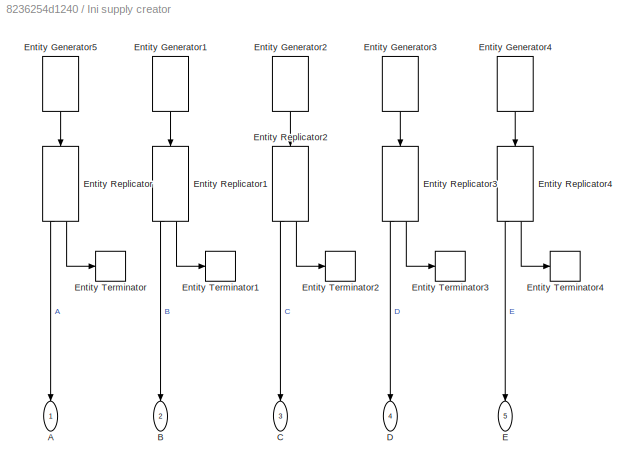
BLOCK [SubSystem] Ini supply creator
  Ports = [0, 5]
  RequestExecContextInheritance = off
BLOCK [Outport] Ini supply creator/A
  IconDisplay = Port number
BLOCK [Outport] Ini supply creator/B
  IconDisplay = Port number
  Port = 2
BLOCK [Outport] Ini supply creator/C
  IconDisplay = Port number
  Port = 3
BLOCK [Outport] Ini supply creator/D
  IconDisplay = Port number
  Port = 4
BLOCK [Outport] Ini supply creator/E
  IconDisplay = Port number
  Port = 5
BLOCK [EntityGenerator] Ini supply creator/Entity Generator1
  AttributeInitialValue = 2
  AttributeName = PartNumber
  EntityType = Structured
  EntityTypeName = Part
  OutputPortMap = o3
  OutputPortMessageModes = m
  Period = inf
  Ports = [0, 1]
BLOCK [EntityGenerator] Ini supply creator/Entity Generator2
  AttributeInitialValue = 3
  AttributeName = PartNumber
  EntityType = Structured
  EntityTypeName = Part
  OutputPortMap = o3
  OutputPortMessageModes = m
  Period = inf
  Ports = [0, 1]
BLOCK [EntityGenerator] Ini supply creator/Entity Generator3
  AttributeInitialValue = 4
  AttributeName = PartNumber
  EntityType = Structured
  EntityTypeName = Part
  OutputPortMap = o3
  OutputPortMessageModes = m
  Period = inf
  Ports = [0, 1]
BLOCK [EntityGenerator] Ini supply creator/Entity Generator4
  AttributeInitialValue = 5
  AttributeName = PartNumber
  EntityType = Structured
  EntityTypeName = Part
  OutputPortMap = o3
  OutputPortMessageModes = m
  Period = inf
  Ports = [0, 1]
BLOCK [EntityGenerator] Ini supply creator/Entity Generator5
  AttributeName = PartNumber
  EntityType = Structured
  EntityTypeName = Part
  OutputPortMap = o3
  OutputPortMessageModes = m
  Period = inf
  Ports = [0, 1]
BLOCK [EntityReplicator] Ini supply creator/Entity Replicator
  InputPortMap = u0
  InputPortMessageModes = m
  NumberReplicas = 20
  OutputPortMap = o0,o1
  OutputPortMessageModes = m,m
  Ports = [1, 2]
  ReplicasDepartFrom = Single output port
BLOCK [EntityReplicator] Ini supply creator/Entity Replicator1
  InputPortMap = u0
  InputPortMessageModes = m
  NumberReplicas = 20
  OutputPortMap = o0,o1
  OutputPortMessageModes = m,m
  Ports = [1, 2]
  ReplicasDepartFrom = Single output port
BLOCK [EntityReplicator] Ini supply creator/Entity Replicator2
  InputPortMap = u0
  InputPortMessageModes = m
  NumberReplicas = 20
  OutputPortMap = o0,o1
  OutputPortMessageModes = m,m
  Ports = [1, 2]
  ReplicasDepartFrom = Single output port
BLOCK [EntityReplicator] Ini supply creator/Entity Replicator3
  InputPortMap = u0
  InputPortMessageModes = m
  NumberReplicas = 20
  OutputPortMap = o0,o1
  OutputPortMessageModes = m,m
  Ports = [1, 2]
  ReplicasDepartFrom = Single output port
BLOCK [EntityReplicator] Ini supply creator/Entity Replicator4
  InputPortMap = u0
  InputPortMessageModes = m
  NumberReplicas = 20
  OutputPortMap = o0,o1
  OutputPortMessageModes = m,m
  Ports = [1, 2]
  ReplicasDepartFrom = Single output port
BLOCK [EntityTerminator] Ini supply creator/Entity Terminator
  InputPortMap = u0
  InputPortMessageModes = m
  Ports = [1]
BLOCK [EntityTerminator] Ini supply creator/Entity Terminator1
  InputPortMap = u0
  InputPortMessageModes = m
  Ports = [1]
BLOCK [EntityTerminator] Ini supply creator/Entity Terminator2
  InputPortMap = u0
  InputPortMessageModes = m
  Ports = [1]
BLOCK [EntityTerminator] Ini supply creator/Entity Terminator3
  InputPortMap = u0
  InputPortMessageModes = m
  Ports = [1]
BLOCK [EntityTerminator] Ini supply creator/Entity Terminator4
  InputPortMap = u0
  InputPortMessageModes = m
  Ports = [1]
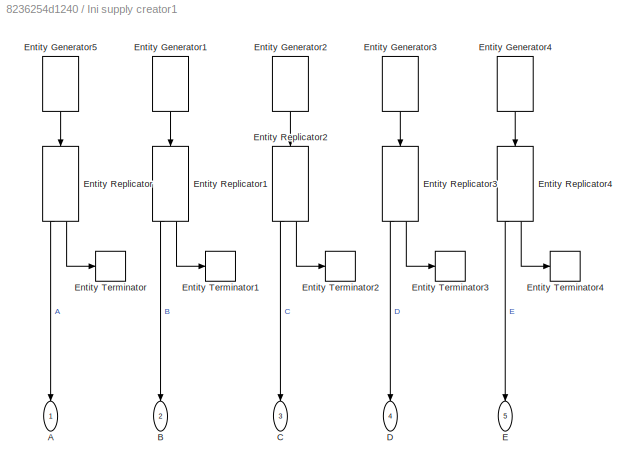
BLOCK [SubSystem] Ini supply creator1
  Ports = [0, 5]
  RequestExecContextInheritance = off
BLOCK [Outport] Ini supply creator1/A
  IconDisplay = Port number
BLOCK [Outport] Ini supply creator1/B
  IconDisplay = Port number
  Port = 2
BLOCK [Outport] Ini supply creator1/C
  IconDisplay = Port number
  Port = 3
BLOCK [Outport] Ini supply creator1/D
  IconDisplay = Port number
  Port = 4
BLOCK [Outport] Ini supply creator1/E
  IconDisplay = Port number
  Port = 5
BLOCK [EntityGenerator] Ini supply creator1/Entity Generator1
  AttributeInitialValue = 2
  AttributeName = PartNumber
  EntityType = Structured
  EntityTypeName = Part
  OutputPortMap = o3
  OutputPortMessageModes = m
  Period = inf
  Ports = [0, 1]
BLOCK [EntityGenerator] Ini supply creator1/Entity Generator2
  AttributeInitialValue = 3
  AttributeName = PartNumber
  EntityType = Structured
  EntityTypeName = Part
  OutputPortMap = o3
  OutputPortMessageModes = m
  Period = inf
  Ports = [0, 1]
BLOCK [EntityGenerator] Ini supply creator1/Entity Generator3
  AttributeInitialValue = 4
  AttributeName = PartNumber
  EntityType = Structured
  EntityTypeName = Part
  OutputPortMap = o3
  OutputPortMessageModes = m
  Period = inf
  Ports = [0, 1]
BLOCK [EntityGenerator] Ini supply creator1/Entity Generator4
  AttributeInitialValue = 5
  AttributeName = PartNumber
  EntityType = Structured
  EntityTypeName = Part
  OutputPortMap = o3
  OutputPortMessageModes = m
  Period = inf
  Ports = [0, 1]
BLOCK [EntityGenerator] Ini supply creator1/Entity Generator5
  AttributeName = PartNumber
  EntityType = Structured
  EntityTypeName = Part
  OutputPortMap = o3
  OutputPortMessageModes = m
  Period = inf
  Ports = [0, 1]
BLOCK [EntityReplicator] Ini supply creator1/Entity Replicator
  InputPortMap = u0
  InputPortMessageModes = m
  NumberReplicas = 20
  OutputPortMap = o0,o1
  OutputPortMessageModes = m,m
  Ports = [1, 2]
  ReplicasDepartFrom = Single output port
BLOCK [EntityReplicator] Ini supply creator1/Entity Replicator1
  InputPortMap = u0
  InputPortMessageModes = m
  NumberReplicas = 20
  OutputPortMap = o0,o1
  OutputPortMessageModes = m,m
  Ports = [1, 2]
  ReplicasDepartFrom = Single output port
BLOCK [EntityReplicator] Ini supply creator1/Entity Replicator2
  InputPortMap = u0
  InputPortMessageModes = m
  NumberReplicas = 20
  OutputPortMap = o0,o1
  OutputPortMessageModes = m,m
  Ports = [1, 2]
  ReplicasDepartFrom = Single output port
BLOCK [EntityReplicator] Ini supply creator1/Entity Replicator3
  InputPortMap = u0
  InputPortMessageModes = m
  NumberReplicas = 20
  OutputPortMap = o0,o1
  OutputPortMessageModes = m,m
  Ports = [1, 2]
  ReplicasDepartFrom = Single output port
BLOCK [EntityReplicator] Ini supply creator1/Entity Replicator4
  InputPortMap = u0
  InputPortMessageModes = m
  NumberReplicas = 20
  OutputPortMap = o0,o1
  OutputPortMessageModes = m,m
  Ports = [1, 2]
  ReplicasDepartFrom = Single output port
BLOCK [EntityTerminator] Ini supply creator1/Entity Terminator
  InputPortMap = u0
  InputPortMessageModes = m
  Ports = [1]
BLOCK [EntityTerminator] Ini supply creator1/Entity Terminator1
  InputPortMap = u0
  InputPortMessageModes = m
  Ports = [1]
BLOCK [EntityTerminator] Ini supply creator1/Entity Terminator2
  InputPortMap = u0
  InputPortMessageModes = m
  Ports = [1]
BLOCK [EntityTerminator] Ini supply creator1/Entity Terminator3
  InputPortMap = u0
  InputPortMessageModes = m
  Ports = [1]
BLOCK [EntityTerminator] Ini supply creator1/Entity Terminator4
  InputPortMap = u0
  InputPortMessageModes = m
  Ports = [1]
BLOCK [Integrator] Integrator
  Ports = [1, 1]
BLOCK [Integrator] Integrator3
  Ports = [1, 1]
BLOCK [Integrator] Integrator4
  Ports = [1, 1]
BLOCK [Integrator] Integrator5
  Ports = [1, 1]
BLOCK [Integrator] Integrator6
  Ports = [1, 1]
BLOCK [Integrator] Integrator7
  Ports = [1, 1]
BLOCK [Integrator] Integrator8
  Ports = [1, 1]
BLOCK [Scope] Inventory level distribution center
  Floating = off
  NumInputPorts = 1
  Ports = [1]
  ScopeSpecificationString = Simulink.scopes.TimeScopeBlockCfg('CurrentConfiguration', extmgr.ConfigurationSet(extmgr.Configuration('Core','General UI',true),extmgr.Configuration('Core','Source UI',true),extmgr.Configuration('Sources','WiredSimulink',true,'DataLoggingVariableName','ScopeData2'),extmgr.Configuration('Visuals','Time Domain',true,'SerializedDisplays',{struct('MinYLimReal','-2.5','MaxYLimReal','22.5','YLabelReal'...<+1581ch>
BLOCK [Scope] Inventory level island
  Floating = off
  NumInputPorts = 1
  Ports = [1]
  ScopeSpecificationString = Simulink.scopes.TimeScopeBlockCfg('CurrentConfiguration', extmgr.ConfigurationSet(extmgr.Configuration('Core','General UI',true,'FigureColor',[1 1 1]),extmgr.Configuration('Core','Source UI',true),extmgr.Configuration('Sources','WiredSimulink',true),extmgr.Configuration('Visuals','Time Domain',true,'SerializedDisplays',{struct('MinYLimReal','10.375','MaxYLimReal','26.625','YLabelReal','','MinYLimM...<+2034ch>
BLOCK [Scope] Inventory level terminal
  Floating = off
  NumInputPorts = 1
  Ports = [1]
  ScopeSpecificationString = Simulink.scopes.TimeScopeBlockCfg('CurrentConfiguration', extmgr.ConfigurationSet(extmgr.Configuration('Core','General UI',true),extmgr.Configuration('Core','Source UI',true),extmgr.Configuration('Sources','WiredSimulink',true,'DataLoggingVariableName','ScopeData1'),extmgr.Configuration('Visuals','Time Domain',true,'SerializedDisplays',{struct('MinYLimReal','-2.00000','MaxYLimReal','18.00000','YLa...<+1581ch>
BLOCK [Scope] JIT Scope
  Floating = off
  NumInputPorts = 5
  Ports = [5]
  ScopeSpecificationString = Simulink.scopes.TimeScopeBlockCfg('CurrentConfiguration', extmgr.ConfigurationSet(extmgr.Configuration('Core','General UI',true,'FigureColor',[1 1 1]),extmgr.Configuration('Core','Source UI',true),extmgr.Configuration('Sources','WiredSimulink',true,'DataLoggingVariableName','ScopeData1'),extmgr.Configuration('Visuals','Time Domain',true,'SerializedDisplays',{struct('MinYLimReal','11.375','MaxYLimR...<+6888ch>
BLOCK [EntityServer] Loading
  Capacity = inf
  InputPortMap = u2
  InputPortMessageModes = m
  OutputPortMap = o9
  OutputPortMessageModes = m
  Ports = [1, 1]
  ServiceTimeValue = 1
BLOCK [Mux] Mux
  DisplayOption = bar
  Inputs = 6
  Ports = [6, 1]
BLOCK [Mux] Mux1
  DisplayOption = bar
  Inputs = 5
  Ports = [5, 1]
BLOCK [Mux] Mux10
  DisplayOption = bar
  Inputs = 6
  Ports = [6, 1]
BLOCK [Mux] Mux11
  DisplayOption = bar
  Inputs = 3
  Ports = [3, 1]
BLOCK [Mux] Mux12
  DisplayOption = bar
  Inputs = 3
  Ports = [3, 1]
BLOCK [Mux] Mux13
  DisplayOption = bar
  Inputs = 3
  Ports = [3, 1]
BLOCK [Mux] Mux14
  DisplayOption = bar
  Inputs = 3
  Ports = [3, 1]
BLOCK [Mux] Mux15
  DisplayOption = bar
  Inputs = 5
  Ports = [5, 1]
BLOCK [Mux] Mux17
  DisplayOption = bar
  Inputs = 5
  Ports = [5, 1]
BLOCK [Mux] Mux2
  DisplayOption = bar
  Inputs = 6
  Ports = [6, 1]
BLOCK [Mux] Mux3
  DisplayOption = bar
  Inputs = 3
  Ports = [3, 1]
BLOCK [Mux] Mux4
  DisplayOption = bar
  Inputs = 5
  Ports = [5, 1]
BLOCK [Mux] Mux5
  DisplayOption = bar
  Inputs = 5
  Ports = [5, 1]
BLOCK [Mux] Mux6
  DisplayOption = bar
  Inputs = 5
  Ports = [5, 1]
BLOCK [Mux] Mux7
  DisplayOption = bar
  Inputs = 5
  Ports = [5, 1]
BLOCK [Mux] Mux8
  DisplayOption = bar
  Inputs = 5
  Ports = [5, 1]
BLOCK [Mux] Mux9
  DisplayOption = bar
  Inputs = 5
  Ports = [5, 1]
BLOCK [Scope] Overall DC releaser
  Floating = off
  NumInputPorts = 1
  Ports = [1]
  ScopeSpecificationString = Simulink.scopes.TimeScopeBlockCfg('CurrentConfiguration', extmgr.ConfigurationSet(extmgr.Configuration('Core','General UI',true),extmgr.Configuration('Core','Source UI',true),extmgr.Configuration('Sources','WiredSimulink',true,'DataLoggingVariableName','ScopeData1'),extmgr.Configuration('Visuals','Time Domain',true,'SerializedDisplays',{struct('MinYLimReal','-1.375','MaxYLimReal','12.375','YLabelR...<+1460ch>
BLOCK [Display] Passed components
  Decimation = 1
  Ports = [1]
BLOCK [Scope] Post DC trigger
  Floating = off
  NumInputPorts = 1
  Ports = [1]
  ScopeSpecificationString = Simulink.scopes.TimeScopeBlockCfg('CurrentConfiguration', extmgr.ConfigurationSet(extmgr.Configuration('Core','General UI',true),extmgr.Configuration('Core','Source UI',true),extmgr.Configuration('Sources','WiredSimulink',true,'DataLoggingVariableName','ScopeData3'),extmgr.Configuration('Visuals','Time Domain',true,'SerializedDisplays',{struct('MinYLimReal','-0.125','MaxYLimReal','1.125','YLabelRe...<+1439ch>
BLOCK [Scope] Pre DC storage
  Floating = off
  NumInputPorts = 1
  Ports = [1]
  ScopeSpecificationString = Simulink.scopes.TimeScopeBlockCfg('CurrentConfiguration', extmgr.ConfigurationSet(extmgr.Configuration('Core','General UI',true),extmgr.Configuration('Core','Source UI',true),extmgr.Configuration('Sources','WiredSimulink',true,'DataLoggingVariableName','ScopeData1'),extmgr.Configuration('Visuals','Time Domain',true,'SerializedDisplays',{struct('MinYLimReal','-0.125','MaxYLimReal','1.125','YLabelRe...<+1448ch>
BLOCK [Scope] Pre DC storage1
  Floating = off
  NumInputPorts = 1
  Ports = [1]
  ScopeSpecificationString = Simulink.scopes.TimeScopeBlockCfg('CurrentConfiguration', extmgr.ConfigurationSet(extmgr.Configuration('Core','General UI',true),extmgr.Configuration('Core','Source UI',true),extmgr.Configuration('Sources','WiredSimulink',true,'DataLoggingVariableName','ScopeData2'),extmgr.Configuration('Visuals','Time Domain',true,'SerializedDisplays',{struct('MinYLimReal','-0.125','MaxYLimReal','1.125','YLabelRe...<+1474ch>
BLOCK [EntityResourceAcquirer] Resource Acquirer
  InputPortMap = u0
  InputPortMessageModes = m
  OutputPortMap = o3
  OutputPortMessageModes = m
  Ports = [1, 1]
  ResourceName = LD_trucks
BLOCK [EntityResourceAcquirer] Resource Acquirer1
  InputPortMap = u0
  InputPortMessageModes = m
  OutputPortMap = o3
  OutputPortMessageModes = m
  Ports = [1, 1]
  ResourceName = LD_trucks
BLOCK [EntityResourceAcquirer] Resource Acquirer2
  InputPortMap = u0
  InputPortMessageModes = m
  OutputPortMap = o3
  OutputPortMessageModes = m
  Ports = [1, 1]
  ResourceName = LD_trucks
BLOCK [EntityResourceAcquirer] Resource Acquirer3
  InputPortMap = u0
  InputPortMessageModes = m
  OutputPortMap = o3
  OutputPortMessageModes = m
  Ports = [1, 1]
  ResourceName = LD_trucks
BLOCK [EntityResourceAcquirer] Resource Acquirer4
  InputPortMap = u0
  InputPortMessageModes = m
  OutputPortMap = o3
  OutputPortMessageModes = m
  Ports = [1, 1]
  ResourceName = LD_trucks
BLOCK [EntityResourcePool] Resource Pool
  Ports = []
  ResourceAmount = 30
  ResourceName = LD_trucks
BLOCK [EntityResourceReleaser] Resource Releaser
  InputPortMap = u0
  InputPortMessageModes = m
  OutputPortMap = o0
  OutputPortMessageModes = m
  Ports = [1, 1]
  ResourceName = LD_trucks
  ResourceToRelease = Selected
BLOCK [EntityResourceReleaser] Resource Releaser1
  InputPortMap = u0
  InputPortMessageModes = m
  OutputPortMap = o0
  OutputPortMessageModes = m
  Ports = [1, 1]
  ResourceName = LD_trucks
  ResourceToRelease = Selected
BLOCK [EntityResourceReleaser] Resource Releaser2
  InputPortMap = u0
  InputPortMessageModes = m
  OutputPortMap = o0
  OutputPortMessageModes = m
  Ports = [1, 1]
  ResourceName = LD_trucks
  ResourceToRelease = Selected
BLOCK [EntityResourceReleaser] Resource Releaser3
  InputPortMap = u0
  InputPortMessageModes = m
  OutputPortMap = o0
  OutputPortMessageModes = m
  Ports = [1, 1]
  ResourceName = LD_trucks
  ResourceToRelease = Selected
BLOCK [EntityResourceReleaser] Resource Releaser4
  InputPortMap = u0
  InputPortMessageModes = m
  OutputPortMap = o0
  OutputPortMessageModes = m
  Ports = [1, 1]
  ResourceName = LD_trucks
  ResourceToRelease = Selected
BLOCK [EntityServer] Road transport
  Capacity = inf
  InputPortMap = u2
  InputPortMessageModes = m
  OutputPortMap = o9
  OutputPortMessageModes = m
  Ports = [1, 1]
  ServiceTimeAction = dt = normrnd(D(2,4),ts_sigma_distance(2,4));
  ServiceTimeSource = MATLAB action
  ServiceTimeValue = 20
BLOCK [Scope] Road transport troughput
  Floating = off
  NumInputPorts = 1
  Ports = [1]
  ScopeSpecificationString = Simulink.scopes.TimeScopeBlockCfg('CurrentConfiguration', extmgr.ConfigurationSet(extmgr.Configuration('Core','General UI',true),extmgr.Configuration('Core','Source UI',true),extmgr.Configuration('Sources','WiredSimulink',true,'DataLoggingVariableName','ScopeData3'),extmgr.Configuration('Visuals','Time Domain',true,'SerializedDisplays',{struct('MinYLimReal','-0.5','MaxYLimReal','4.5','YLabelReal',...<+1428ch>
BLOCK [Scope] Schedule data
  Floating = off
  NumInputPorts = 6
  Ports = [6]
  ScopeSpecificationString = Simulink.scopes.TimeScopeBlockCfg('CurrentConfiguration', extmgr.ConfigurationSet(extmgr.Configuration('Core','General UI',true),extmgr.Configuration('Core','Source UI',true),extmgr.Configuration('Sources','WiredSimulink',true,'DataLoggingVariableName','ScopeData9'),extmgr.Configuration('Visuals','Time Domain',true,'SerializedDisplays',{struct('MinYLimReal','-0.125','MaxYLimReal','1.125','YLabelRe...<+1577ch>
BLOCK [Scope] Schedule data accumulated
  Floating = off
  NumInputPorts = 6
  Ports = [6]
  ScopeSpecificationString = Simulink.scopes.TimeScopeBlockCfg('CurrentConfiguration', extmgr.ConfigurationSet(extmgr.Configuration('Core','General UI',true),extmgr.Configuration('Core','Source UI',true),extmgr.Configuration('Sources','WiredSimulink',true,'DataLoggingVariableName','ScopeData2'),extmgr.Configuration('Visuals','Time Domain',true,'SerializedDisplays',{struct('MinYLimReal','-13.875','MaxYLimReal','124.875','YLabe...<+1648ch>
BLOCK [Scope] Scope4
  Floating = off
  NumInputPorts = 1
  Ports = [1]
  ScopeSpecificationString = Simulink.scopes.TimeScopeBlockCfg('CurrentConfiguration', extmgr.ConfigurationSet(extmgr.Configuration('Core','General UI',true),extmgr.Configuration('Core','Source UI',true),extmgr.Configuration('Sources','WiredSimulink',true,'DataLoggingVariableName','ScopeData5'),extmgr.Configuration('Visuals','Time Domain',true,'SerializedDisplays',{struct('MinYLimReal','-0.125','MaxYLimReal','1.125','YLabelRe...<+1668ch>
BLOCK [EntityServer] Sea Transport
  Capacity = inf
  InputPortMap = u2
  InputPortMessageModes = m
  NumberEntitiesDeparted = on
  OutputPortMap = o0,o9
  OutputPortMessageModes = n,m
  Ports = [1, 2]
  ServiceTimeAction = dt = normrnd(ts_vessel,2);
  ServiceTimeSource = MATLAB action
  ServiceTimeValue = 50
BLOCK [Scope] Sea transport post releaser
  Floating = off
  NumInputPorts = 1
  Ports = [1]
  ScopeSpecificationString = Simulink.scopes.TimeScopeBlockCfg('CurrentConfiguration', extmgr.ConfigurationSet(extmgr.Configuration('Core','General UI',true),extmgr.Configuration('Core','Source UI',true),extmgr.Configuration('Sources','WiredSimulink',true,'DataLoggingVariableName','ScopeData1'),extmgr.Configuration('Visuals','Time Domain',true,'SerializedDisplays',{struct('MinYLimReal','-0.125','MaxYLimReal','1.125','YLabelRe...<+1443ch>
BLOCK [Scope] Sea transport releaser
  Floating = off
  NumInputPorts = 1
  Ports = [1]
  ScopeSpecificationString = Simulink.scopes.TimeScopeBlockCfg('CurrentConfiguration', extmgr.ConfigurationSet(extmgr.Configuration('Core','General UI',true),extmgr.Configuration('Core','Source UI',true),extmgr.Configuration('Sources','WiredSimulink',true,'DataLoggingVariableName','ScopeData4'),extmgr.Configuration('Visuals','Time Domain',true,'SerializedDisplays',{struct('MinYLimReal','-0.125','MaxYLimReal','1.125','YLabelRe...<+1455ch>
BLOCK [Scope] Sea transport signal
  Floating = off
  NumInputPorts = 1
  Ports = [1]
  ScopeSpecificationString = Simulink.scopes.TimeScopeBlockCfg('CurrentConfiguration', extmgr.ConfigurationSet(extmgr.Configuration('Core','General UI',true),extmgr.Configuration('Core','Source UI',true),extmgr.Configuration('Sources','WiredSimulink',true,'DataLoggingVariableName','ScopeData5'),extmgr.Configuration('Visuals','Time Domain',true,'SerializedDisplays',{struct('MinYLimReal','-0.625','MaxYLimReal','5.625','YLabelRe...<+1425ch>
BLOCK [Scope] Sea transport sope
  Floating = off
  NumInputPorts = 1
  Ports = [1]
  ScopeSpecificationString = Simulink.scopes.TimeScopeBlockCfg('CurrentConfiguration', extmgr.ConfigurationSet(extmgr.Configuration('Core','General UI',true),extmgr.Configuration('Core','Source UI',true),extmgr.Configuration('Sources','WiredSimulink',true,'DataLoggingVariableName','ScopeData2'),extmgr.Configuration('Visuals','Time Domain',true,'SerializedDisplays',{struct('MinYLimReal','-9.75','MaxYLimReal','97.75','YLabelRea...<+1433ch>
BLOCK [Scope] Sea transport trigger
  Floating = off
  NumInputPorts = 1
  Ports = [1]
  ScopeSpecificationString = Simulink.scopes.TimeScopeBlockCfg('CurrentConfiguration', extmgr.ConfigurationSet(extmgr.Configuration('Core','General UI',true),extmgr.Configuration('Core','Source UI',true),extmgr.Configuration('Sources','WiredSimulink',true,'DataLoggingVariableName','ScopeData3'),extmgr.Configuration('Visuals','Time Domain',true,'SerializedDisplays',{struct('MinYLimReal','-1.00000','MaxYLimReal','1.00000','YLab...<+1469ch>
BLOCK [TransportDelay] Switched transport delay for linearization
  DelayTime = 7
  PadeOrder = 1
  Ports = [1, 1]
BLOCK [TransportDelay] Switched transport delay for linearization1
  PadeOrder = 1
  Ports = [1, 1]
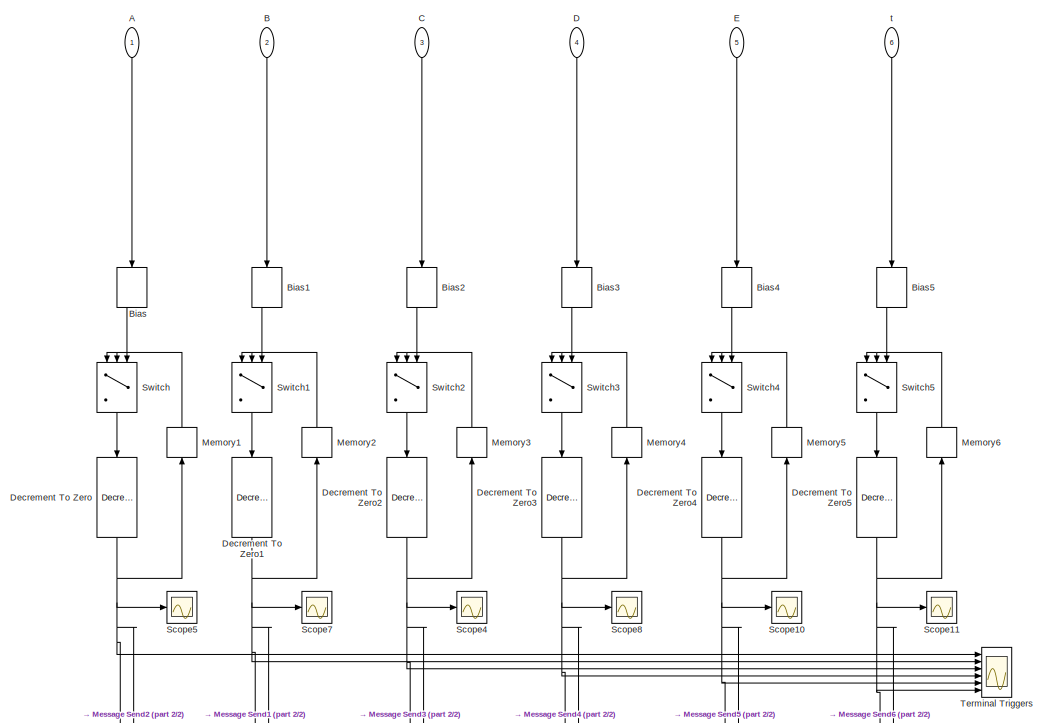
[diagram: Terminal trigger system - part 1/2, full width, top band]
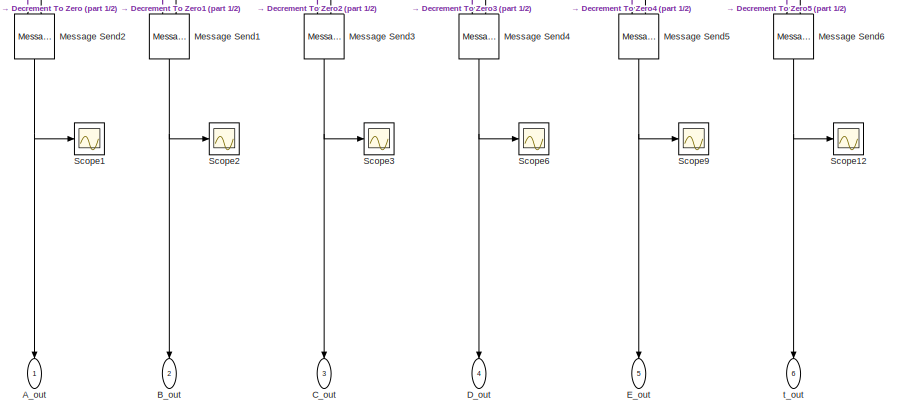
[diagram: Terminal trigger system - part 2/2, full width, bottom band]
BLOCK [SubSystem] Terminal trigger system
  Commented = on
  Ports = [6, 6]
  RequestExecContextInheritance = off
BLOCK [Inport] Terminal trigger system/A
  IconDisplay = Port number
BLOCK [Outport] Terminal trigger system/A_out
  IconDisplay = Port number
BLOCK [Inport] Terminal trigger system/B
  IconDisplay = Port number
  Port = 2
BLOCK [Outport] Terminal trigger system/B_out
  IconDisplay = Port number
  Port = 2
BLOCK [Bias] Terminal trigger system/Bias
  Bias = 1
  SaturateOnIntegerOverflow = off
BLOCK [Bias] Terminal trigger system/Bias1
  Bias = 1
  SaturateOnIntegerOverflow = off
BLOCK [Bias] Terminal trigger system/Bias2
  Bias = 1
  SaturateOnIntegerOverflow = off
BLOCK [Bias] Terminal trigger system/Bias3
  Bias = 1
  SaturateOnIntegerOverflow = off
BLOCK [Bias] Terminal trigger system/Bias4
  Bias = 1
  SaturateOnIntegerOverflow = off
BLOCK [Bias] Terminal trigger system/Bias5
  Bias = 1
  SaturateOnIntegerOverflow = off
BLOCK [Inport] Terminal trigger system/C
  IconDisplay = Port number
  Port = 3
BLOCK [Outport] Terminal trigger system/C_out
  IconDisplay = Port number
  Port = 3
BLOCK [Inport] Terminal trigger system/D
  IconDisplay = Port number
  Port = 4
BLOCK [Outport] Terminal trigger system/D_out
  IconDisplay = Port number
  Port = 4
BLOCK [Reference] Terminal trigger system/Decrement To Zero  REF=simulink/Additional Math
& Discrete/Additional Math:
Increment - Decrement/Decrement
To Zero
  Ports = [1, 1]
  SourceBlock = simulink/Additional Math\n& Discrete/Additional Math:\nIncrement - Decrement/Decrement\nTo Zero
  SourceProductBaseCode = SL
  SourceProductName = Simulink
  SourceType = Decrement To Zero
BLOCK [Reference] Terminal trigger system/Decrement To Zero1  REF=simulink/Additional Math
& Discrete/Additional Math:
Increment - Decrement/Decrement
To Zero
  Ports = [1, 1]
  SourceBlock = simulink/Additional Math\n& Discrete/Additional Math:\nIncrement - Decrement/Decrement\nTo Zero
  SourceProductBaseCode = SL
  SourceProductName = Simulink
  SourceType = Decrement To Zero
BLOCK [Reference] Terminal trigger system/Decrement To Zero2  REF=simulink/Additional Math
& Discrete/Additional Math:
Increment - Decrement/Decrement
To Zero
  Ports = [1, 1]
  SourceBlock = simulink/Additional Math\n& Discrete/Additional Math:\nIncrement - Decrement/Decrement\nTo Zero
  SourceProductBaseCode = SL
  SourceProductName = Simulink
  SourceType = Decrement To Zero
BLOCK [Reference] Terminal trigger system/Decrement To Zero3  REF=simulink/Additional Math
& Discrete/Additional Math:
Increment - Decrement/Decrement
To Zero
  Ports = [1, 1]
  SourceBlock = simulink/Additional Math\n& Discrete/Additional Math:\nIncrement - Decrement/Decrement\nTo Zero
  SourceProductBaseCode = SL
  SourceProductName = Simulink
  SourceType = Decrement To Zero
BLOCK [Reference] Terminal trigger system/Decrement To Zero4  REF=simulink/Additional Math
& Discrete/Additional Math:
Increment - Decrement/Decrement
To Zero
  Ports = [1, 1]
  SourceBlock = simulink/Additional Math\n& Discrete/Additional Math:\nIncrement - Decrement/Decrement\nTo Zero
  SourceProductBaseCode = SL
  SourceProductName = Simulink
  SourceType = Decrement To Zero
BLOCK [Reference] Terminal trigger system/Decrement To Zero5  REF=simulink/Additional Math
& Discrete/Additional Math:
Increment - Decrement/Decrement
To Zero
  Ports = [1, 1]
  SourceBlock = simulink/Additional Math\n& Discrete/Additional Math:\nIncrement - Decrement/Decrement\nTo Zero
  SourceProductBaseCode = SL
  SourceProductName = Simulink
  SourceType = Decrement To Zero
BLOCK [Inport] Terminal trigger system/E
  IconDisplay = Port number
  Port = 5
BLOCK [Outport] Terminal trigger system/E_out
  IconDisplay = Port number
  Port = 5
BLOCK [Memory] Terminal trigger system/Memory1
BLOCK [Memory] Terminal trigger system/Memory2
BLOCK [Memory] Terminal trigger system/Memory3
BLOCK [Memory] Terminal trigger system/Memory4
BLOCK [Memory] Terminal trigger system/Memory5
BLOCK [Memory] Terminal trigger system/Memory6
BLOCK [MessageSend] Terminal trigger system/Message Send1
  InputPortMap = e0,u1
  OutputPortMessageModes = m
  Ports = [2, 1]
  ShowEnablePort = on
BLOCK [MessageSend] Terminal trigger system/Message Send2
  InputPortMap = e0,u1
  OutputPortMessageModes = m
  Ports = [2, 1]
  ShowEnablePort = on
BLOCK [MessageSend] Terminal trigger system/Message Send3
  InputPortMap = e0,u1
  OutputPortMessageModes = m
  Ports = [2, 1]
  ShowEnablePort = on
BLOCK [MessageSend] Terminal trigger system/Message Send4
  InputPortMap = e0,u1
  OutputPortMessageModes = m
  Ports = [2, 1]
  ShowEnablePort = on
BLOCK [MessageSend] Terminal trigger system/Message Send5
  InputPortMap = e0,u1
  OutputPortMessageModes = m
  Ports = [2, 1]
  ShowEnablePort = on
BLOCK [MessageSend] Terminal trigger system/Message Send6
  InputPortMap = e0,u1
  OutputPortMessageModes = m
  Ports = [2, 1]
  ShowEnablePort = on
BLOCK [Scope] Terminal trigger system/Scope1
  Floating = off
  NumInputPorts = 1
  Ports = [1]
  ScopeSpecificationString = Simulink.scopes.TimeScopeBlockCfg('CurrentConfiguration', extmgr.ConfigurationSet(extmgr.Configuration('Core','General UI',true),extmgr.Configuration('Core','Source UI',true),extmgr.Configuration('Sources','WiredSimulink',true,'DataLoggingVariableName','ScopeData1'),extmgr.Configuration('Visuals','Time Domain',true,'SerializedDisplays',{struct('MinYLimReal','-1.125','MaxYLimReal','10.125','YLabelR...<+1458ch>
BLOCK [Scope] Terminal trigger system/Scope10
  Floating = off
  NumInputPorts = 1
  Ports = [1]
  ScopeSpecificationString = Simulink.scopes.TimeScopeBlockCfg('CurrentConfiguration', extmgr.ConfigurationSet(extmgr.Configuration('Core','General UI',true),extmgr.Configuration('Core','Source UI',true),extmgr.Configuration('Sources','WiredSimulink',true,'DataLoggingVariableName','ScopeData7'),extmgr.Configuration('Visuals','Time Domain',true,'SerializedDisplays',{struct('MinYLimReal','-0.5','MaxYLimReal','4.5','YLabelReal',...<+1447ch>
BLOCK [Scope] Terminal trigger system/Scope11
  Floating = off
  NumInputPorts = 1
  Ports = [1]
  ScopeSpecificationString = Simulink.scopes.TimeScopeBlockCfg('CurrentConfiguration', extmgr.ConfigurationSet(extmgr.Configuration('Core','General UI',true),extmgr.Configuration('Core','Source UI',true),extmgr.Configuration('Sources','WiredSimulink',true,'DataLoggingVariableName','ScopeData10'),extmgr.Configuration('Visuals','Time Domain',true,'SerializedDisplays',{struct('MinYLimReal','-1.375','MaxYLimReal','12.375','YLabel...<+1464ch>
BLOCK [Scope] Terminal trigger system/Scope12
  Floating = off
  NumInputPorts = 1
  Ports = [1]
  ScopeSpecificationString = Simulink.scopes.TimeScopeBlockCfg('CurrentConfiguration', extmgr.ConfigurationSet(extmgr.Configuration('Core','General UI',true),extmgr.Configuration('Core','Source UI',true),extmgr.Configuration('Sources','WiredSimulink',true,'DataLoggingVariableName','ScopeData11'),extmgr.Configuration('Visuals','Time Domain',true,'SerializedDisplays',{struct('MinYLimReal','-1.125','MaxYLimReal','10.125','YLabel...<+1434ch>
BLOCK [Scope] Terminal trigger system/Scope2
  Floating = off
  NumInputPorts = 1
  Ports = [1]
  ScopeSpecificationString = Simulink.scopes.TimeScopeBlockCfg('CurrentConfiguration', extmgr.ConfigurationSet(extmgr.Configuration('Core','General UI',true),extmgr.Configuration('Core','Source UI',true),extmgr.Configuration('Sources','WiredSimulink',true,'DataLoggingVariableName','ScopeData2'),extmgr.Configuration('Visuals','Time Domain',true,'SerializedDisplays',{struct('MinYLimReal','-1.125','MaxYLimReal','10.125','YLabelR...<+1431ch>
BLOCK [Scope] Terminal trigger system/Scope3
  Floating = off
  NumInputPorts = 1
  Ports = [1]
  ScopeSpecificationString = Simulink.scopes.TimeScopeBlockCfg('CurrentConfiguration', extmgr.ConfigurationSet(extmgr.Configuration('Core','General UI',true),extmgr.Configuration('Core','Source UI',true),extmgr.Configuration('Sources','WiredSimulink',true,'DataLoggingVariableName','ScopeData3'),extmgr.Configuration('Visuals','Time Domain',true,'SerializedDisplays',{struct('MinYLimReal','-1.125','MaxYLimReal','10.125','YLabelR...<+1433ch>
BLOCK [Scope] Terminal trigger system/Scope4
  Floating = off
  NumInputPorts = 1
  Ports = [1]
  ScopeSpecificationString = Simulink.scopes.TimeScopeBlockCfg('CurrentConfiguration', extmgr.ConfigurationSet(extmgr.Configuration('Core','General UI',true),extmgr.Configuration('Core','Source UI',true),extmgr.Configuration('Sources','WiredSimulink',true,'DataLoggingVariableName','ScopeData4'),extmgr.Configuration('Visuals','Time Domain',true,'SerializedDisplays',{struct('MinYLimReal','-0.5','MaxYLimReal','4.5','YLabelReal',...<+1447ch>
BLOCK [Scope] Terminal trigger system/Scope5
  Floating = off
  NumInputPorts = 1
  Ports = [1]
  ScopeSpecificationString = Simulink.scopes.TimeScopeBlockCfg('CurrentConfiguration', extmgr.ConfigurationSet(extmgr.Configuration('Core','General UI',true),extmgr.Configuration('Core','Source UI',true),extmgr.Configuration('Sources','WiredSimulink',true,'DataLoggingVariableName','ScopeData1'),extmgr.Configuration('Visuals','Time Domain',true,'SerializedDisplays',{struct('MinYLimReal','-1.125','MaxYLimReal','10.125','YLabelR...<+1436ch>
BLOCK [Scope] Terminal trigger system/Scope6
  Floating = off
  NumInputPorts = 1
  Ports = [1]
  ScopeSpecificationString = Simulink.scopes.TimeScopeBlockCfg('CurrentConfiguration', extmgr.ConfigurationSet(extmgr.Configuration('Core','General UI',true),extmgr.Configuration('Core','Source UI',true),extmgr.Configuration('Sources','WiredSimulink',true,'DataLoggingVariableName','ScopeData5'),extmgr.Configuration('Visuals','Time Domain',true,'SerializedDisplays',{struct('MinYLimReal','-1.125','MaxYLimReal','10.125','YLabelR...<+1433ch>
BLOCK [Scope] Terminal trigger system/Scope7
  Floating = off
  NumInputPorts = 1
  Ports = [1]
  ScopeSpecificationString = Simulink.scopes.TimeScopeBlockCfg('CurrentConfiguration', extmgr.ConfigurationSet(extmgr.Configuration('Core','General UI',true),extmgr.Configuration('Core','Source UI',true),extmgr.Configuration('Sources','WiredSimulink',true,'DataLoggingVariableName','ScopeData3'),extmgr.Configuration('Visuals','Time Domain',true,'SerializedDisplays',{struct('MinYLimReal','-0.5','MaxYLimReal','4.5','YLabelReal',...<+1447ch>
BLOCK [Scope] Terminal trigger system/Scope8
  Floating = off
  NumInputPorts = 1
  Ports = [1]
  ScopeSpecificationString = Simulink.scopes.TimeScopeBlockCfg('CurrentConfiguration', extmgr.ConfigurationSet(extmgr.Configuration('Core','General UI',true),extmgr.Configuration('Core','Source UI',true),extmgr.Configuration('Sources','WiredSimulink',true,'DataLoggingVariableName','ScopeData6'),extmgr.Configuration('Visuals','Time Domain',true,'SerializedDisplays',{struct('MinYLimReal','-0.5','MaxYLimReal','4.5','YLabelReal',...<+1447ch>
BLOCK [Scope] Terminal trigger system/Scope9
  Floating = off
  NumInputPorts = 1
  Ports = [1]
  ScopeSpecificationString = Simulink.scopes.TimeScopeBlockCfg('CurrentConfiguration', extmgr.ConfigurationSet(extmgr.Configuration('Core','General UI',true),extmgr.Configuration('Core','Source UI',true),extmgr.Configuration('Sources','WiredSimulink',true,'DataLoggingVariableName','ScopeData8'),extmgr.Configuration('Visuals','Time Domain',true,'SerializedDisplays',{struct('MinYLimReal','-1.125','MaxYLimReal','10.125','YLabelR...<+1433ch>
BLOCK [Switch] Terminal trigger system/Switch
  Criteria = u2 ~= 0
  InputSameDT = off
  SaturateOnIntegerOverflow = off
BLOCK [Switch] Terminal trigger system/Switch1
  Criteria = u2 ~= 0
  InputSameDT = off
  SaturateOnIntegerOverflow = off
BLOCK [Switch] Terminal trigger system/Switch2
  Criteria = u2 ~= 0
  InputSameDT = off
  SaturateOnIntegerOverflow = off
BLOCK [Switch] Terminal trigger system/Switch3
  Criteria = u2 ~= 0
  InputSameDT = off
  SaturateOnIntegerOverflow = off
BLOCK [Switch] Terminal trigger system/Switch4
  Criteria = u2 ~= 0
  InputSameDT = off
  SaturateOnIntegerOverflow = off
BLOCK [Switch] Terminal trigger system/Switch5
  Criteria = u2 ~= 0
  InputSameDT = off
  SaturateOnIntegerOverflow = off
BLOCK [Scope] Terminal trigger system/Terminal Triggers
  Floating = off
  NumInputPorts = 6
  Ports = [6]
  ScopeSpecificationString = Simulink.scopes.TimeScopeBlockCfg('CurrentConfiguration', extmgr.ConfigurationSet(extmgr.Configuration('Core','General UI',true),extmgr.Configuration('Core','Source UI',true),extmgr.Configuration('Sources','WiredSimulink',true,'DataLoggingVariableName','ScopeData5'),extmgr.Configuration('Visuals','Time Domain',true,'SerializedDisplays',{struct('MinYLimReal','-1.375','MaxYLimReal','12.375','YLabelR...<+1571ch>
BLOCK [Inport] Terminal trigger system/t
  IconDisplay = Port number
  Port = 6
BLOCK [Outport] Terminal trigger system/t_out
  IconDisplay = Port number
  Port = 6
BLOCK [Terminator] Terminator1
BLOCK [Terminator] Terminator2
BLOCK [Terminator] Terminator4
BLOCK [ToWorkspace] To Workspace
  MaxDataPoints = inf
  Ports = [1]
  Save2DSignal = 2-D array (concatenate along first dimension)
  VariableName = inventory_level_island
BLOCK [ToWorkspace] To Workspace1
  FixptAsFi = on
  MaxDataPoints = inf
  Ports = [1]
  Save2DSignal = 2-D array (concatenate along first dimension)
  VariableName = com_caller
BLOCK [ToWorkspace] To Workspace2
  FixptAsFi = on
  MaxDataPoints = inf
  Ports = [1]
  Save2DSignal = 2-D array (concatenate along first dimension)
  VariableName = com_released
BLOCK [ToWorkspace] To Workspace3
  FixptAsFi = on
  MaxDataPoints = inf
  Ports = [1]
  Save2DSignal = 2-D array (concatenate along first dimension)
  VariableName = com_arrivals
BLOCK [ToWorkspace] To Workspace4
  MaxDataPoints = inf
  Ports = [1]
  Save2DSignal = 2-D array (concatenate along first dimension)
  VariableName = inventory_level_terminal
BLOCK [ToWorkspace] To Workspace5
  MaxDataPoints = inf
  Ports = [1]
  Save2DSignal = 2-D array (concatenate along first dimension)
  VariableName = inventory_level_distcenter
BLOCK [ToWorkspace] To Workspace6
  FixptAsFi = on
  MaxDataPoints = inf
  Ports = [1]
  Save2DSignal = 2-D array (concatenate along first dimension)
  VariableName = departed_comps
BLOCK [ToWorkspace] To Workspace7
  FixptAsFi = on
  MaxDataPoints = inf
  Ports = [1]
  Save2DSignal = 2-D array (concatenate along first dimension)
  VariableName = arrived_comps
BLOCK [ToWorkspace] To Workspace8
  FixptAsFi = on
  MaxDataPoints = inf
  Ports = [1]
  Save2DSignal = 2-D array (concatenate along first dimension)
  VariableName = n_comps_in_sc
ANNOTATION (root): Control agent
ANNOTATION (root): Distribution Center
ANNOTATION (root): Failure Agent
ANNOTATION (root): Island
ANNOTATION (root): KPI to indicate demanded terminal capacity
ANNOTATION (root): KPI to indicate the component availability on AI
ANNOTATION (root): KPI to indicate the in-time or delayed deliveries
ANNOTATION (root): KPI to measure the inventory level relative to the sigma level
ANNOTATION (root): Nr of parts departed
ANNOTATION (root): Performance measurement
ANNOTATION (root): Performance measurement JIT
ANNOTATION (root): Scopes
ANNOTATION (root): Shedule Agent
ANNOTATION (root): Source
ANNOTATION (root): Terminal
NET Add1:1 -> Add2:2, Departed//Arrived components:2, To Workspace7:1
NET Add2:1 -> Departed//Arrived components:3, To Workspace8:1
NET Add:1 -> Add2:1, Departed//Arrived components:1, To Workspace6:1
NET Blade terminator:1 -> Arrived spares:1, Data Type Conversion30:1
LINE C terminator:1 -> Data Type Conversion32:1
LINE Constant1:1 -> Add3:2
LINE Constant:1 -> Add3:1
LINE Counter2:1 -> Failures3:1
LINE Counter2:2 -> Entity Gate5:1
LINE Counter:1 -> Passed components:1
LINE Counter:2 -> Entity Input Switch:1
LINE D terminator:1 -> Data Type Conversion33:1
LINE Data Type Conversion10:1 -> Mux5:3
LINE Data Type Conversion11:1 -> Mux5:4
LINE Data Type Conversion12:1 -> Mux5:5
LINE Data Type Conversion13:1 -> Mux6:3
LINE Data Type Conversion14:1 -> Mux6:4
LINE Data Type Conversion15:1 -> Mux6:5
LINE Data Type Conversion16:1 -> Mux6:1
LINE Data Type Conversion17:1 -> Mux6:2
NET Data Type Conversion18:1 -> Mux11:1, Mux9:2
NET Data Type Conversion19:1 -> Mux12:1, Mux9:3
NET Data Type Conversion1:1 -> Mux3:2, Mux8:1
NET Data Type Conversion20:1 -> Mux13:1, Mux9:4
NET Data Type Conversion21:1 -> Mux14:1, Mux9:5
NET Data Type Conversion22:1 -> Mux11:2, Mux8:2
NET Data Type Conversion23:1 -> Mux12:2, Mux8:3
NET Data Type Conversion24:1 -> Mux13:2, Mux8:4
NET Data Type Conversion25:1 -> Mux14:2, Mux8:5
NET Data Type Conversion26:1 -> Mux11:3, Mux7:2
NET Data Type Conversion27:1 -> Mux12:3, Mux7:3
NET Data Type Conversion28:1 -> Mux13:3, Mux7:4
NET Data Type Conversion29:1 -> Mux14:3, Mux7:5
NET Data Type Conversion2:1 -> Mux3:1, Mux9:1
NET Data Type Conversion30:1 -> Components arrived:1, Mux15:1
NET Data Type Conversion31:1 -> Components arrived:2, Mux15:2
NET Data Type Conversion32:1 -> Components arrived:3, Mux15:3
NET Data Type Conversion33:1 -> Components arrived:4, Mux15:4
NET Data Type Conversion34:1 -> Components arrived:5, Mux15:5
LINE Data Type Conversion3:1 -> Mux4:1
LINE Data Type Conversion4:1 -> Mux4:2
LINE Data Type Conversion5:1 -> Mux4:3
LINE Data Type Conversion6:1 -> Mux4:4
LINE Data Type Conversion7:1 -> Mux4:5
LINE Data Type Conversion8:1 -> Mux5:1
LINE Data Type Conversion9:1 -> Mux5:2
NET Data Type Conversion:1 -> Mux3:3, Mux7:1
NET Demux1:1 -> Hit Crossing12:1, Mux1:1
NET Demux1:2 -> Hit Crossing13:1, Mux1:2
NET Demux1:3 -> Hit Crossing14:1, Mux1:3
NET Demux1:4 -> Hit Crossing15:1, Mux1:4
NET Demux1:5 -> Hit Crossing16:1, Mux1:5
LINE Demux2:1 -> Add1:1
LINE Demux2:2 -> Add1:2
LINE Demux2:3 -> Add1:3
LINE Demux2:4 -> Add1:4
LINE Demux2:5 -> Add1:5
NET Demux3:1 -> DC transport signal:1, Hit Crossing6:1
LINE Demux3:2 -> Hit Crossing7:1
LINE Demux3:3 -> Hit Crossing8:1
LINE Demux3:4 -> Hit Crossing9:1
LINE Demux3:5 -> Hit Crossing10:1
LINE Demux3:6 -> Hit Crossing11:1
NET Demux5:1 -> Hit Crossing:1, Sea transport signal:1
LINE Demux5:2 -> Hit Crossing1:1
LINE Demux5:3 -> Hit Crossing2:1
LINE Demux5:4 -> Hit Crossing3:1
LINE Demux5:5 -> Hit Crossing4:1
LINE Demux5:6 -> Hit Crossing5:1
NET Demux:1 -> Integrator3:1, Mux10:1, Mux2:1, Mux:1, Schedule data:1
NET Demux:2 -> Integrator4:1, Mux10:2, Mux2:2, Mux:2, Schedule data:2
NET Demux:3 -> Integrator5:1, Mux10:3, Mux2:3, Mux:3, Schedule data:3
NET Demux:4 -> Integrator6:1, Mux10:4, Mux2:4, Mux:4, Schedule data:4
NET Demux:5 -> Integrator7:1, Mux10:5, Mux2:5, Mux:5, Schedule data:5
NET Demux:6 -> Integrator8:1, Mux10:6, Mux2:6, Mux:6, Schedule data:6
LINE Digital Clock:1 -> Terminator1:1
LINE E terminator:1 -> Data Type Conversion34:1
LINE Entity Gate10:1 -> Road transport:1
LINE Entity Gate11:1 -> Entity Server:1
LINE Entity Gate12:1 -> Entity Server13:1
LINE Entity Gate13:1 -> Entity Server14:1
LINE Entity Gate14:1 -> Entity Server15:1
LINE Entity Gate15:1 -> Entity Server16:1
LINE Entity Gate16:1 -> Sea Transport:1
LINE Entity Gate1:1 -> Gearbox terminator:1
LINE Entity Gate2:1 -> C terminator:1
LINE Entity Gate3:1 -> D terminator:1
LINE Entity Gate4:1 -> E terminator:1
NET Entity Gate5:1 -> Counter:1, Post DC trigger:1
LINE Entity Gate6:1 -> Entity Input Switch:2
LINE Entity Gate7:1 -> Entity Input Switch:3
LINE Entity Gate8:1 -> Entity Input Switch:4
LINE Entity Gate9:1 -> Entity Input Switch:5
LINE Entity Gate:1 -> Blade terminator:1
NET Entity Generator10:1 -> Entity Gate16:1, Sea transport releaser:1
NET Entity Generator11:1 -> Counter2:1, DC trigger:1
LINE Entity Generator12:1 -> Entity Gate6:1
LINE Entity Generator13:1 -> Entity Gate7:1
LINE Entity Generator14:1 -> Entity Gate8:1
LINE Entity Generator15:1 -> Entity Gate9:1
NET Entity Generator16:1 -> Entity Gate10:1, Overall DC releaser:1
LINE Entity Generator18:1 -> Entity Server1:1
LINE Entity Generator19:1 -> Entity Gate1:1
LINE Entity Generator1:1 -> Add:4
LINE Entity Generator1:2 -> Entity Queue11:1
LINE Entity Generator20:1 -> Entity Gate2:1
LINE Entity Generator21:1 -> Entity Gate3:1
LINE Entity Generator22:1 -> Entity Gate4:1
LINE Entity Generator2:1 -> Add:3
LINE Entity Generator2:2 -> Entity Queue12:1
LINE Entity Generator3:1 -> Add:2
LINE Entity Generator3:2 -> Entity Queue13:1
LINE Entity Generator4:1 -> Add:1
LINE Entity Generator4:2 -> Entity Queue14:1
NET Entity Generator5:1 -> Entity Server2:1, Sea transport trigger:1
LINE Entity Generator6:1 -> Entity Server17:1
LINE Entity Generator7:1 -> Entity Server18:1
LINE Entity Generator8:1 -> Entity Server19:1
LINE Entity Generator9:1 -> Entity Server20:1
LINE Entity Generator:1 -> Add:5
LINE Entity Generator:2 -> Entity Queue10:1
LINE Entity Input Switch10:1 -> Entity Store3:1
LINE Entity Input Switch11:1 -> Entity Store4:1
LINE Entity Input Switch1:1 -> Entity Queue:1
LINE Entity Input Switch2:1 -> Entity Queue1:1
LINE Entity Input Switch3:1 -> Entity Queue2:1
LINE Entity Input Switch4:1 -> Entity Queue3:1
LINE Entity Input Switch5:1 -> Entity Queue4:1
LINE Entity Input Switch6:1 -> Entity Store6:1
NET Entity Input Switch7:1 -> Entity Store:1, Pre DC storage:1
LINE Entity Input Switch8:1 -> Entity Store1:1
LINE Entity Input Switch9:1 -> Entity Store2:1
LINE Entity Input Switch:1 -> Loading:1
LINE Entity Output Switch1:1 -> Entity Server3:1
LINE Entity Output Switch1:2 -> Entity Server9:1
LINE Entity Output Switch1:3 -> Entity Server10:1
LINE Entity Output Switch1:4 -> Entity Server11:1
LINE Entity Output Switch1:5 -> Entity Server12:1
LINE Entity Output Switch:1 -> Entity Input Switch1:2
LINE Entity Output Switch:2 -> Entity Input Switch2:2
LINE Entity Output Switch:3 -> Entity Input Switch3:2
LINE Entity Output Switch:4 -> Entity Input Switch4:2
LINE Entity Output Switch:5 -> Entity Input Switch5:2
LINE Entity Queue10:1 -> Resource Acquirer:1
LINE Entity Queue11:1 -> Resource Acquirer1:1
LINE Entity Queue12:1 -> Resource Acquirer2:1
LINE Entity Queue13:1 -> Resource Acquirer3:1
LINE Entity Queue14:1 -> Resource Acquirer4:1
LINE Entity Queue1:1 -> Data Type Conversion4:1
LINE Entity Queue1:2 -> Entity Gate1:2
LINE Entity Queue2:1 -> Data Type Conversion5:1
LINE Entity Queue2:2 -> Entity Gate2:2
LINE Entity Queue3:1 -> Data Type Conversion6:1
LINE Entity Queue3:2 -> Entity Gate3:2
LINE Entity Queue4:1 -> Data Type Conversion7:1
LINE Entity Queue4:2 -> Entity Gate4:2
LINE Entity Queue5:1 -> Data Type Conversion8:1
LINE Entity Queue5:2 -> Entity Gate11:2
LINE Entity Queue6:1 -> Data Type Conversion9:1
LINE Entity Queue6:2 -> Entity Gate12:2
LINE Entity Queue7:1 -> Data Type Conversion10:1
LINE Entity Queue7:2 -> Entity Gate13:2
LINE Entity Queue8:1 -> Data Type Conversion11:1
LINE Entity Queue8:2 -> Entity Gate14:2
LINE Entity Queue9:1 -> Data Type Conversion12:1
LINE Entity Queue9:2 -> Entity Gate15:2
LINE Entity Queue:1 -> Data Type Conversion3:1
LINE Entity Queue:2 -> Entity Gate:2
LINE Entity Server10:1 -> Data Type Conversion19:1
LINE Entity Server10:2 -> Entity Queue7:1
LINE Entity Server11:1 -> Data Type Conversion20:1
LINE Entity Server11:2 -> Entity Queue8:1
LINE Entity Server12:1 -> Data Type Conversion21:1
LINE Entity Server12:2 -> Entity Queue9:1
LINE Entity Server13:1 -> Data Type Conversion22:1
LINE Entity Server13:2 -> Entity Input Switch6:2
LINE Entity Server14:1 -> Data Type Conversion23:1
LINE Entity Server14:2 -> Entity Input Switch6:3
LINE Entity Server15:1 -> Data Type Conversion24:1
LINE Entity Server15:2 -> Entity Input Switch6:4
LINE Entity Server16:1 -> Data Type Conversion25:1
LINE Entity Server16:2 -> Entity Input Switch6:5
LINE Entity Server17:1 -> Data Type Conversion26:1
LINE Entity Server17:2 -> Entity Gate12:1
LINE Entity Server18:1 -> Data Type Conversion27:1
LINE Entity Server18:2 -> Entity Gate13:1
LINE Entity Server19:1 -> Data Type Conversion28:1
LINE Entity Server19:2 -> Entity Gate14:1
LINE Entity Server1:1 -> Failures:1
LINE Entity Server1:2 -> Entity Gate:1
LINE Entity Server20:1 -> Data Type Conversion29:1
LINE Entity Server20:2 -> Entity Gate15:1
NET Entity Server2:1 -> Data Type Conversion:1, Display1:1
LINE Entity Server2:2 -> Entity Gate11:1
NET Entity Server3:1 -> Data Type Conversion2:1, Display2:1
LINE Entity Server3:2 -> Entity Queue5:1
LINE Entity Server4:1 -> Resource Releaser:1
LINE Entity Server5:1 -> Resource Releaser1:1
LINE Entity Server6:1 -> Resource Releaser2:1
LINE Entity Server7:1 -> Resource Releaser3:1
LINE Entity Server8:1 -> Resource Releaser4:1
LINE Entity Server9:1 -> Data Type Conversion18:1
LINE Entity Server9:2 -> Entity Queue6:1
NET Entity Server:1 -> Data Type Conversion1:1, Display:1
NET Entity Server:2 -> Entity Input Switch6:1, Sea transport post releaser:1
LINE Entity Store1:1 -> Data Type Conversion17:1
LINE Entity Store1:2 -> Entity Gate6:2
LINE Entity Store2:1 -> Data Type Conversion13:1
LINE Entity Store2:2 -> Entity Gate7:2
LINE Entity Store3:1 -> Data Type Conversion14:1
LINE Entity Store3:2 -> Entity Gate8:2
LINE Entity Store4:1 -> Data Type Conversion15:1
LINE Entity Store4:2 -> Entity Gate9:2
LINE Entity Store6:1 -> Entity Gate16:2
LINE Entity Store:1 -> Data Type Conversion16:1
LINE Entity Store:2 -> Entity Gate5:2
LINE From Workspace1:1 -> Demux:1
NET From Workspace:1 -> Demux1:1, Integrator:1, Scope4:1
LINE From1:1 -> Demand - delivery flow:1
LINE From2:1 -> Demand - delivery flow:2
LINE From3:1 -> Demux2:1
LINE From:1 -> Demand - delivery flow:3
LINE Gearbox terminator:1 -> Data Type Conversion31:1
LINE Hit Crossing10:1 -> Entity Generator15:1
LINE Hit Crossing11:1 -> Entity Generator16:1
LINE Hit Crossing12:1 -> Entity Generator18:1
LINE Hit Crossing13:1 -> Entity Generator19:1
LINE Hit Crossing14:1 -> Entity Generator20:1
LINE Hit Crossing15:1 -> Entity Generator21:1
LINE Hit Crossing16:1 -> Entity Generator22:1
LINE Hit Crossing1:1 -> Entity Generator6:1
LINE Hit Crossing2:1 -> Entity Generator7:1
LINE Hit Crossing3:1 -> Entity Generator8:1
LINE Hit Crossing4:1 -> Entity Generator9:1
LINE Hit Crossing5:1 -> Entity Generator10:1
LINE Hit Crossing6:1 -> Entity Generator11:1
LINE Hit Crossing7:1 -> Entity Generator12:1
LINE Hit Crossing8:1 -> Entity Generator13:1
LINE Hit Crossing9:1 -> Entity Generator14:1
LINE Hit Crossing:1 -> Entity Generator5:1
LINE Ini supply creator/Entity Generator1:1 -> Ini supply creator/Entity Replicator1:1
LINE Ini supply creator/Entity Generator2:1 -> Ini supply creator/Entity Replicator2:1
LINE Ini supply creator/Entity Generator3:1 -> Ini supply creator/Entity Replicator3:1
LINE Ini supply creator/Entity Generator4:1 -> Ini supply creator/Entity Replicator4:1
LINE Ini supply creator/Entity Generator5:1 -> Ini supply creator/Entity Replicator:1
LINE Ini supply creator/Entity Replicator1:1 -> Ini supply creator/B:1
LINE Ini supply creator/Entity Replicator1:2 -> Ini supply creator/Entity Terminator1:1
LINE Ini supply creator/Entity Replicator2:1 -> Ini supply creator/C:1
LINE Ini supply creator/Entity Replicator2:2 -> Ini supply creator/Entity Terminator2:1
LINE Ini supply creator/Entity Replicator3:1 -> Ini supply creator/D:1
LINE Ini supply creator/Entity Replicator3:2 -> Ini supply creator/Entity Terminator3:1
LINE Ini supply creator/Entity Replicator4:1 -> Ini supply creator/E:1
LINE Ini supply creator/Entity Replicator4:2 -> Ini supply creator/Entity Terminator4:1
LINE Ini supply creator/Entity Replicator:1 -> Ini supply creator/A:1
LINE Ini supply creator/Entity Replicator:2 -> Ini supply creator/Entity Terminator:1
LINE Ini supply creator1/Entity Generator1:1 -> Ini supply creator1/Entity Replicator1:1
LINE Ini supply creator1/Entity Generator2:1 -> Ini supply creator1/Entity Replicator2:1
LINE Ini supply creator1/Entity Generator3:1 -> Ini supply creator1/Entity Replicator3:1
LINE Ini supply creator1/Entity Generator4:1 -> Ini supply creator1/Entity Replicator4:1
LINE Ini supply creator1/Entity Generator5:1 -> Ini supply creator1/Entity Replicator:1
LINE Ini supply creator1/Entity Replicator1:1 -> Ini supply creator1/B:1
LINE Ini supply creator1/Entity Replicator1:2 -> Ini supply creator1/Entity Terminator1:1
LINE Ini supply creator1/Entity Replicator2:1 -> Ini supply creator1/C:1
LINE Ini supply creator1/Entity Replicator2:2 -> Ini supply creator1/Entity Terminator2:1
LINE Ini supply creator1/Entity Replicator3:1 -> Ini supply creator1/D:1
LINE Ini supply creator1/Entity Replicator3:2 -> Ini supply creator1/Entity Terminator3:1
LINE Ini supply creator1/Entity Replicator4:1 -> Ini supply creator1/E:1
LINE Ini supply creator1/Entity Replicator4:2 -> Ini supply creator1/Entity Terminator4:1
LINE Ini supply creator1/Entity Replicator:1 -> Ini supply creator1/A:1
LINE Ini supply creator1/Entity Replicator:2 -> Ini supply creator1/Entity Terminator:1
NET Ini supply creator1:1 -> Entity Input Switch7:1, Pre DC storage1:1
LINE Ini supply creator1:2 -> Entity Input Switch8:1
LINE Ini supply creator1:3 -> Entity Input Switch9:1
LINE Ini supply creator1:4 -> Entity Input Switch10:1
LINE Ini supply creator1:5 -> Entity Input Switch11:1
LINE Ini supply creator:1 -> Entity Input Switch1:1
LINE Ini supply creator:2 -> Entity Input Switch2:1
LINE Ini supply creator:3 -> Entity Input Switch3:1
LINE Ini supply creator:4 -> Entity Input Switch4:1
LINE Ini supply creator:5 -> Entity Input Switch5:1
NET Integrator3:1 -> Mux17:1, Schedule data accumulated:1
NET Integrator4:1 -> Mux17:2, Schedule data accumulated:2
NET Integrator5:1 -> Mux17:3, Schedule data accumulated:3
NET Integrator6:1 -> Mux17:4, Schedule data accumulated:4
NET Integrator7:1 -> Mux17:5, Schedule data accumulated:5
LINE Integrator8:1 -> Schedule data accumulated:6
NET Integrator:1 -> Failures cumulated:1, Goto2:1
LINE Loading:1 -> Entity Gate10:2
LINE Mux10:1 -> Switched transport delay for linearization1:1
LINE Mux11:1 -> JIT Scope:2
LINE Mux12:1 -> JIT Scope:3
LINE Mux13:1 -> JIT Scope:4
LINE Mux14:1 -> JIT Scope:5
LINE Mux15:1 -> Goto:1
LINE Mux17:1 -> Goto1:1
LINE Mux1:1 -> Terminator2:1
LINE Mux2:1 -> Switched transport delay for linearization:1
LINE Mux3:1 -> JIT Scope:1
NET Mux4:1 -> Inventory level island:1, To Workspace:1
NET Mux5:1 -> Inventory level terminal:1, To Workspace4:1
NET Mux6:1 -> Inventory level distribution center:1, To Workspace5:1
LINE Mux7:1 -> To Workspace1:1
LINE Mux8:1 -> To Workspace2:1
LINE Mux9:1 -> To Workspace3:1
LINE Mux:1 -> Terminator4:1
LINE Resource Acquirer1:1 -> Entity Server5:1
LINE Resource Acquirer2:1 -> Entity Server6:1
LINE Resource Acquirer3:1 -> Entity Server7:1
LINE Resource Acquirer4:1 -> Entity Server8:1
LINE Resource Acquirer:1 -> Entity Server4:1
LINE Resource Releaser1:1 -> Entity Input Switch8:2
LINE Resource Releaser2:1 -> Entity Input Switch9:2
LINE Resource Releaser3:1 -> Entity Input Switch10:2
LINE Resource Releaser4:1 -> Entity Input Switch11:2
LINE Resource Releaser:1 -> Entity Input Switch7:2
NET Road transport:1 -> Entity Output Switch1:1, Road transport troughput:1
LINE Sea Transport:1 -> Sea transport sope:1
LINE Sea Transport:2 -> Entity Output Switch:1
LINE Switched transport delay for linearization1:1 -> Demux3:1
LINE Switched transport delay for linearization:1 -> Demux5:1
LINE Terminal trigger system/A:1 -> Terminal trigger system/Bias:1
LINE Terminal trigger system/B:1 -> Terminal trigger system/Bias1:1
LINE Terminal trigger system/Bias1:1 -> Terminal trigger system/Switch1:3
LINE Terminal trigger system/Bias2:1 -> Terminal trigger system/Switch2:3
LINE Terminal trigger system/Bias3:1 -> Terminal trigger system/Switch3:3
LINE Terminal trigger system/Bias4:1 -> Terminal trigger system/Switch4:3
LINE Terminal trigger system/Bias5:1 -> Terminal trigger system/Switch5:3
LINE Terminal trigger system/Bias:1 -> Terminal trigger system/Switch:3
LINE Terminal trigger system/C:1 -> Terminal trigger system/Bias2:1
LINE Terminal trigger system/D:1 -> Terminal trigger system/Bias3:1
NET Terminal trigger system/Decrement To Zero1:1 -> Terminal trigger system/Memory2:1, Terminal trigger system/Message Send1:1, Terminal trigger system/Message Send1:2, Terminal trigger system/Scope7:1, Terminal trigger system/Terminal Triggers:2
NET Terminal trigger system/Decrement To Zero2:1 -> Terminal trigger system/Memory3:1, Terminal trigger system/Message Send3:1, Terminal trigger system/Message Send3:2, Terminal trigger system/Scope4:1, Terminal trigger system/Terminal Triggers:3
NET Terminal trigger system/Decrement To Zero3:1 -> Terminal trigger system/Memory4:1, Terminal trigger system/Message Send4:1, Terminal trigger system/Message Send4:2, Terminal trigger system/Scope8:1, Terminal trigger system/Terminal Triggers:4
NET Terminal trigger system/Decrement To Zero4:1 -> Terminal trigger system/Memory5:1, Terminal trigger system/Message Send5:1, Terminal trigger system/Message Send5:2, Terminal trigger system/Scope10:1, Terminal trigger system/Terminal Triggers:5
NET Terminal trigger system/Decrement To Zero5:1 -> Terminal trigger system/Memory6:1, Terminal trigger system/Message Send6:1, Terminal trigger system/Message Send6:2, Terminal trigger system/Scope11:1, Terminal trigger system/Terminal Triggers:6
NET Terminal trigger system/Decrement To Zero:1 -> Terminal trigger system/Memory1:1, Terminal trigger system/Message Send2:1, Terminal trigger system/Message Send2:2, Terminal trigger system/Scope5:1, Terminal trigger system/Terminal Triggers:1
LINE Terminal trigger system/E:1 -> Terminal trigger system/Bias4:1
NET Terminal trigger system/Memory1:1 -> Terminal trigger system/Switch:1, Terminal trigger system/Switch:2
NET Terminal trigger system/Memory2:1 -> Terminal trigger system/Switch1:1, Terminal trigger system/Switch1:2
NET Terminal trigger system/Memory3:1 -> Terminal trigger system/Switch2:1, Terminal trigger system/Switch2:2
NET Terminal trigger system/Memory4:1 -> Terminal trigger system/Switch3:1, Terminal trigger system/Switch3:2
NET Terminal trigger system/Memory5:1 -> Terminal trigger system/Switch4:1, Terminal trigger system/Switch4:2
NET Terminal trigger system/Memory6:1 -> Terminal trigger system/Switch5:1, Terminal trigger system/Switch5:2
NET Terminal trigger system/Message Send1:1 -> Terminal trigger system/B_out:1, Terminal trigger system/Scope2:1
NET Terminal trigger system/Message Send2:1 -> Terminal trigger system/A_out:1, Terminal trigger system/Scope1:1
NET Terminal trigger system/Message Send3:1 -> Terminal trigger system/C_out:1, Terminal trigger system/Scope3:1
NET Terminal trigger system/Message Send4:1 -> Terminal trigger system/D_out:1, Terminal trigger system/Scope6:1
NET Terminal trigger system/Message Send5:1 -> Terminal trigger system/E_out:1, Terminal trigger system/Scope9:1
NET Terminal trigger system/Message Send6:1 -> Terminal trigger system/Scope12:1, Terminal trigger system/t_out:1
LINE Terminal trigger system/Switch1:1 -> Terminal trigger system/Decrement To Zero1:1
LINE Terminal trigger system/Switch2:1 -> Terminal trigger system/Decrement To Zero2:1
LINE Terminal trigger system/Switch3:1 -> Terminal trigger system/Decrement To Zero3:1
LINE Terminal trigger system/Switch4:1 -> Terminal trigger system/Decrement To Zero4:1
LINE Terminal trigger system/Switch5:1 -> Terminal trigger system/Decrement To Zero5:1
LINE Terminal trigger system/Switch:1 -> Terminal trigger system/Decrement To Zero:1
LINE Terminal trigger system/t:1 -> Terminal trigger system/Bias5:1
note: NET lines group one-source signal fan-out (src -> all destinations, sorted); 1:1 wires keep LINE
